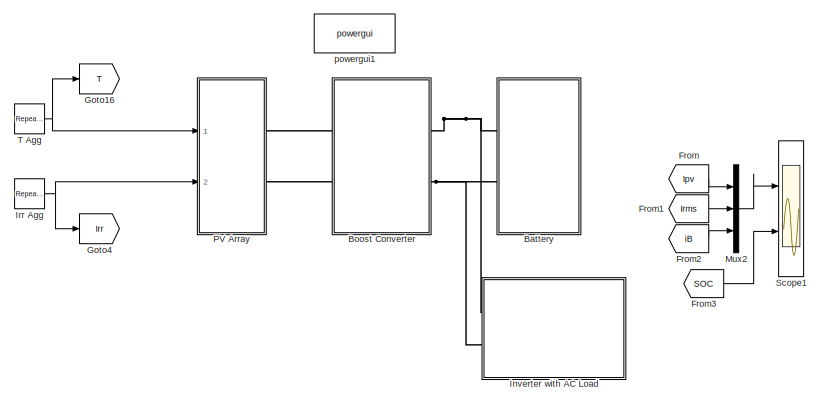
[diagram: root canvas - part 1/2, top center region]
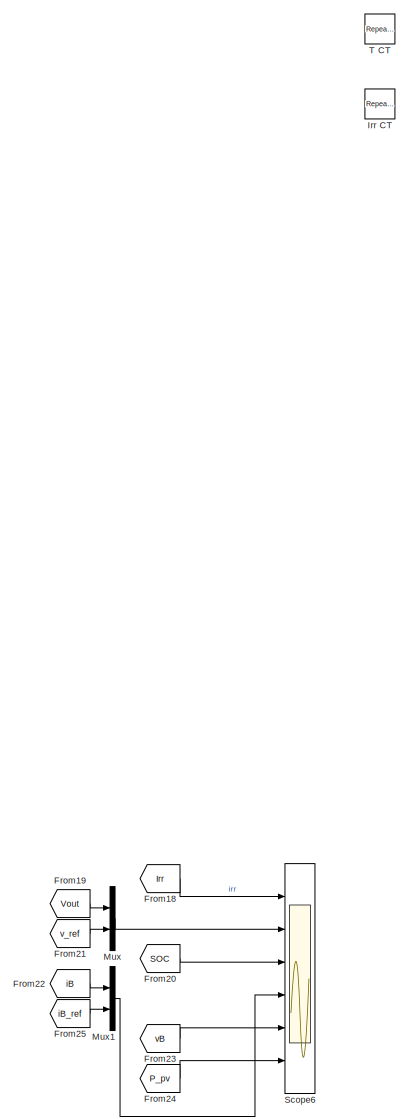
[diagram: root canvas - part 2/2, left side, full height]
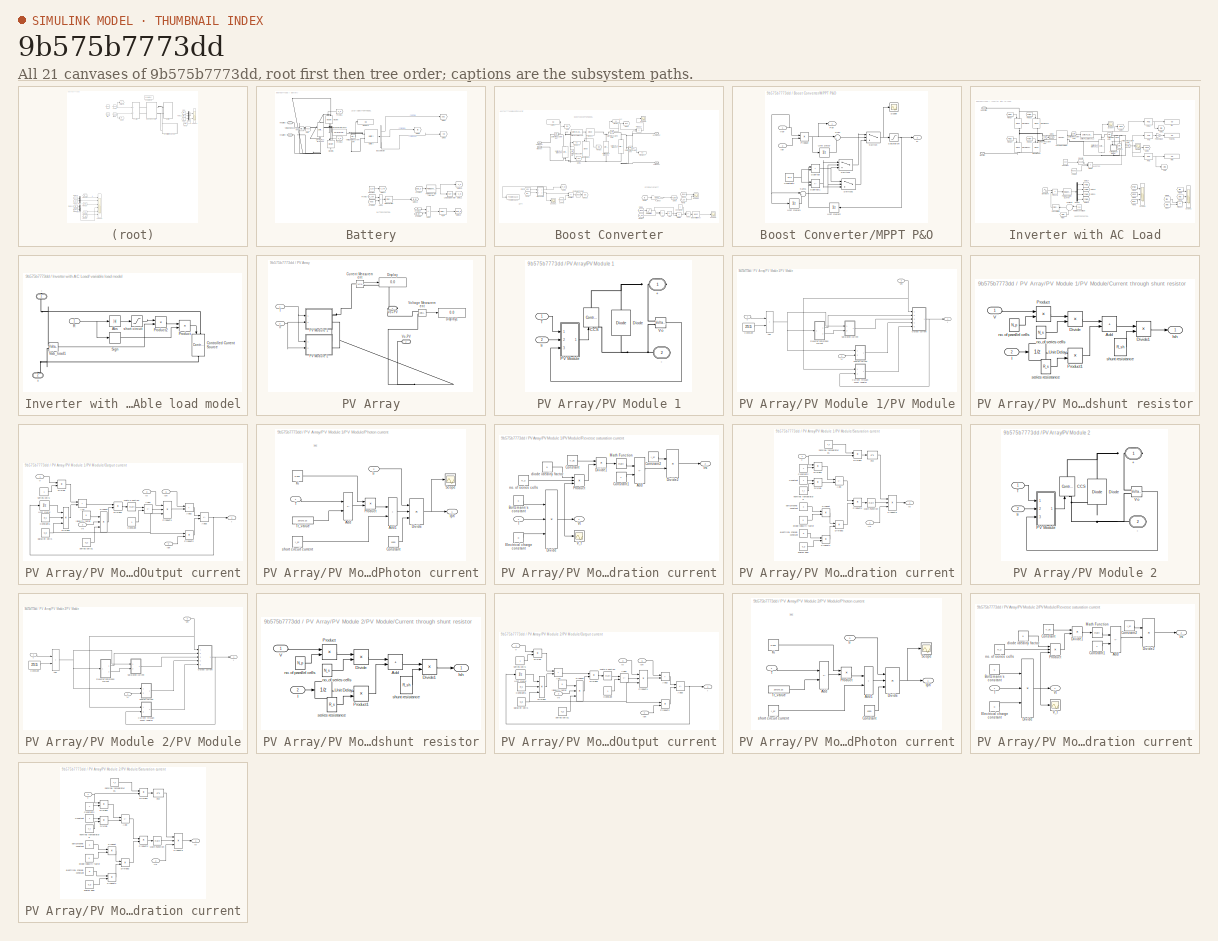
[diagram: thumbnail index - all 21 canvases of the model, root first then tree order]
MODEL slx_9b575b7773dd
KIND model
CONFIG AbsTol = auto
CONFIG EnableMultiTasking = off
CONFIG FixedStep = 1e-6
CONFIG MaxStep = 1e-5
CONFIG MinStep = 1e-6
CONFIG RelTol = 1e-3
CONFIG SampleTimeConstraint = Unconstrained
CONFIG Solver = VariableStepAuto
CONFIG SolverName = VariableStepAuto
CONFIG StartTime = 0.0
CONFIG StopTime = 24
BLOCK [SubSystem] Battery
  Ports = [0, 0, 0, 0, 0, 2]
  RequestExecContextInheritance = off
BLOCK [Sum] Battery/Add2
  IconShape = rectangular
  Inputs = +-
  Ports = [2, 1]
BLOCK [Sum] Battery/Add3
  IconShape = rectangular
  Inputs = +-
  Ports = [2, 1]
BLOCK [Reference] Battery/Battery  REF=electricdrivelib/Extra Sources/Battery
  NameLocation = top
  Ports = [0, 1, 0, 0, 0, 2]
  SourceBlock = electricdrivelib/Extra Sources/Battery
  SourceProductBaseCode = PS
  SourceType = Battery
BLOCK [BusSelector] Battery/Bus Selector
  OutputSignals = SOC (%),Current (A),Voltage (V)
  Ports = [1, 3]
BLOCK [Constant] Battery/Constant
  Value = 31.38
BLOCK [Display] Battery/Display6
  Decimation = 1
  Ports = [1]
BLOCK [From] Battery/From11
  GotoTag = s_P
  NameLocation = top
BLOCK [From] Battery/From12
  GotoTag = s_N
  NameLocation = top
BLOCK [From] Battery/From13
  GotoTag = duty_b
BLOCK [From] Battery/From14
  GotoTag = iB
  TagVisibility = global
BLOCK [From] Battery/From15
  GotoTag = iB_ref
  TagVisibility = global
BLOCK [From] Battery/From16
  GotoTag = Vout
  TagVisibility = global
BLOCK [From] Battery/From17
  GotoTag = v_ref
  TagVisibility = global
BLOCK [Goto] Battery/Goto
  GotoTag = Vout
  TagVisibility = global
BLOCK [Goto] Battery/Goto10
  GotoTag = s_P
BLOCK [Goto] Battery/Goto11
  GotoTag = s_N
BLOCK [Goto] Battery/Goto12
  GotoTag = duty_b
BLOCK [Goto] Battery/Goto13
  GotoTag = iB_ref
  TagVisibility = global
BLOCK [Goto] Battery/Goto14
  GotoTag = v_ref
  TagVisibility = global
BLOCK [Goto] Battery/Goto7
  GotoTag = SOC
  TagVisibility = global
BLOCK [Goto] Battery/Goto8
  GotoTag = iB
  TagVisibility = global
BLOCK [Goto] Battery/Goto9
  GotoTag = vB
  TagVisibility = global
BLOCK [Logic] Battery/Logical Operator
  AllPortsSameDT = off
  Inputs = 1
  Operator = NOT
  OutDataTypeStr = boolean
  Ports = [1, 1]
BLOCK [Reference] Battery/Mosfet  REF=powerlib/Power
Electronics/Mosfet
  NameLocation = left
  Ports = [1, 0, 0, 0, 0, 1, 1]
  SourceBlock = powerlib/Power\nElectronics/Mosfet
  SourceProductBaseCode = PS
  SourceType = Mosfet
BLOCK [Reference] Battery/Mosfet1  REF=powerlib/Power
Electronics/Mosfet
  NameLocation = left
  Ports = [1, 0, 0, 0, 0, 1, 1]
  SourceBlock = powerlib/Power\nElectronics/Mosfet
  SourceProductBaseCode = PS
  SourceType = Mosfet
BLOCK [Reference] Battery/PID Controller  REF=simulink/Continuous/PID Controller
  Ports = [1, 1]
  SourceBlock = simulink/Continuous/PID Controller
  SourceProductBaseCode = SL
  SourceType = PID 1dof
BLOCK [Reference] Battery/PI_B  REF=simulink/Continuous/PID Controller
  Ports = [1, 1]
  SourceBlock = simulink/Continuous/PID Controller
  SourceProductBaseCode = SL
  SourceType = PID 1dof
BLOCK [Reference] Battery/PWM Generator (DC-DC)  REF=powerlib_meascontrol/Pulse & Signal
Generators/PWM Generator
(DC-DC)
  Ports = [1, 1]
  SourceBlock = powerlib_meascontrol/Pulse & Signal\nGenerators/PWM Generator\n(DC-DC)
  SourceProductBaseCode = PS
  SourceType = PWM Generator (DC-DC)
BLOCK [Reference] Battery/Series RLC Branch  REF=powerlib/Elements/Series RLC Branch
  Ports = [0, 0, 0, 0, 0, 1, 1]
  SourceBlock = powerlib/Elements/Series RLC Branch
  SourceProductBaseCode = PS
  SourceType = Series RLC Branch
BLOCK [Reference] Battery/Series RLC Branch1  REF=powerlib/Elements/Series RLC Branch
  NameLocation = left
  Ports = [0, 0, 0, 0, 0, 1, 1]
  SourceBlock = powerlib/Elements/Series RLC Branch
  SourceProductBaseCode = PS
  SourceType = Series RLC Branch
BLOCK [PMIOPort] Battery/Vi+Battery
  Side = Left
BLOCK [PMIOPort] Battery/Vi-Battery
  Port = 2
  Side = Left
BLOCK [Reference] Battery/Voltage Measurement  REF=powerlib/Measurements/Voltage Measurement
  Ports = [0, 1, 0, 0, 0, 2]
  SourceBlock = powerlib/Measurements/Voltage Measurement
  SourceProductBaseCode = PS
  SourceType = Voltage Measurement
  UserDataPersistent = on
BLOCK [Reference] Battery/Voltage Measurement4  REF=powerlib/Measurements/Voltage Measurement
  Ports = [0, 1, 0, 0, 0, 2]
  SourceBlock = powerlib/Measurements/Voltage Measurement
  SourceProductBaseCode = PS
  SourceType = Voltage Measurement
  UserDataPersistent = on
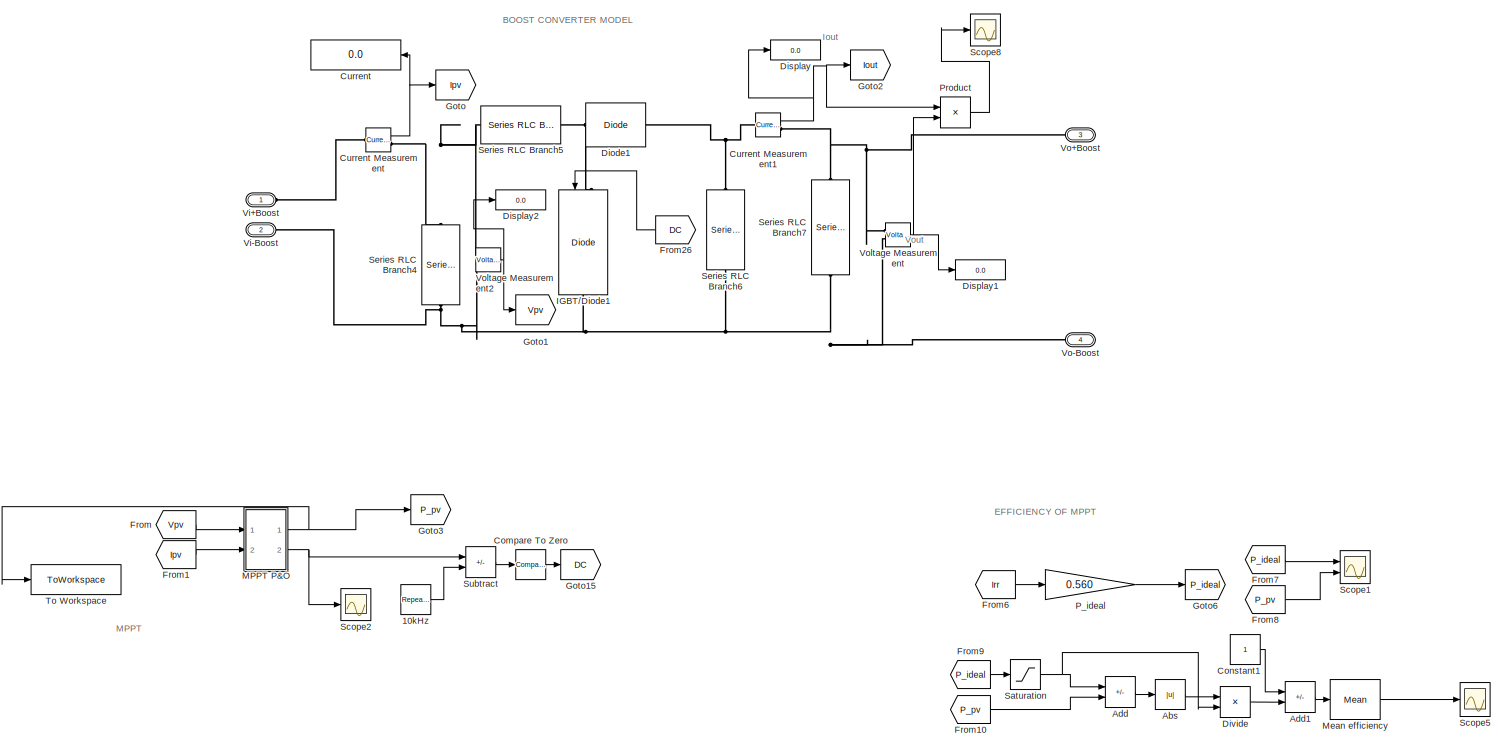
[diagram: Boost Converter - part 1/1, most of the canvas]
BLOCK [SubSystem] Boost Converter
  Ports = [0, 0, 0, 0, 0, 2, 2]
  RequestExecContextInheritance = off
BLOCK [Reference] Boost Converter/10kHz  REF=simulink/Sources/Repeating
Sequence
  Ports = [0, 1]
  SourceBlock = simulink/Sources/Repeating\nSequence
  SourceProductBaseCode = SL
  SourceType = Repeating table
BLOCK [Abs] Boost Converter/Abs
  SaturateOnIntegerOverflow = off
BLOCK [Sum] Boost Converter/Add
  IconShape = rectangular
  Inputs = +-
  Ports = [2, 1]
BLOCK [Sum] Boost Converter/Add1
  IconShape = rectangular
  Inputs = +-
  Ports = [2, 1]
BLOCK [Reference] Boost Converter/Compare To Zero  REF=simulink/Logic and Bit
Operations/Compare
To Zero
  Ports = [1, 1]
  SourceBlock = simulink/Logic and Bit\nOperations/Compare\nTo Zero
  SourceProductBaseCode = SL
  SourceType = Compare To Zero
BLOCK [Constant] Boost Converter/Constant1
BLOCK [Display] Boost Converter/Current
  Decimation = 1
  NameLocation = top
  Ports = [1]
BLOCK [Reference] Boost Converter/Current Measurement  REF=powerlib/Measurements/Current Measurement
  Ports = [0, 1, 0, 0, 0, 1, 1]
  SourceBlock = powerlib/Measurements/Current Measurement
  SourceProductBaseCode = PS
  SourceType = Current Measurement
  UserDataPersistent = on
BLOCK [Reference] Boost Converter/Current Measurement1  REF=powerlib/Measurements/Current Measurement
  Ports = [0, 1, 0, 0, 0, 1, 1]
  SourceBlock = powerlib/Measurements/Current Measurement
  SourceProductBaseCode = PS
  SourceType = Current Measurement
  UserDataPersistent = on
BLOCK [Reference] Boost Converter/Diode1  REF=powerlib/Power
Electronics/Diode
  Ports = [0, 0, 0, 0, 0, 1, 1]
  SourceBlock = powerlib/Power\nElectronics/Diode
  SourceProductBaseCode = PS
  SourceType = Diode
BLOCK [Display] Boost Converter/Display
  Decimation = 1
  Ports = [1]
BLOCK [Display] Boost Converter/Display1
  Decimation = 1
  Ports = [1]
BLOCK [Display] Boost Converter/Display2
  Decimation = 1
  Ports = [1]
BLOCK [Product] Boost Converter/Divide
  Inputs = */
  Ports = [2, 1]
BLOCK [From] Boost Converter/From
  GotoTag = Vpv
  TagVisibility = global
BLOCK [From] Boost Converter/From1
  GotoTag = Ipv
  TagVisibility = global
BLOCK [From] Boost Converter/From10
  GotoTag = P_pv
  TagVisibility = global
BLOCK [From] Boost Converter/From26
  GotoTag = DC
  NameLocation = top
BLOCK [From] Boost Converter/From6
  GotoTag = Irr
  TagVisibility = global
BLOCK [From] Boost Converter/From7
  GotoTag = P_ideal
BLOCK [From] Boost Converter/From8
  GotoTag = P_pv
  TagVisibility = global
BLOCK [From] Boost Converter/From9
  GotoTag = P_ideal
BLOCK [Goto] Boost Converter/Goto
  GotoTag = Ipv
  TagVisibility = global
BLOCK [Goto] Boost Converter/Goto1
  GotoTag = Vpv
  TagVisibility = global
BLOCK [Goto] Boost Converter/Goto15
  GotoTag = DC
BLOCK [Goto] Boost Converter/Goto2
  GotoTag = Iout
BLOCK [Goto] Boost Converter/Goto3
  GotoTag = P_pv
  TagVisibility = global
BLOCK [Goto] Boost Converter/Goto6
  GotoTag = P_ideal
BLOCK [Reference] Boost Converter/IGBT//Diode1  REF=powerlib/Power
Electronics/IGBT//Diode
  NameLocation = left
  Ports = [1, 0, 0, 0, 0, 1, 1]
  SourceBlock = powerlib/Power\nElectronics/IGBT//Diode
  SourceProductBaseCode = PS
  SourceType = IGBT/Diode
BLOCK [SubSystem] Boost Converter/MPPT P&O
  Ports = [2, 2]
  RequestExecContextInheritance = off
BLOCK [Constant] Boost Converter/MPPT P&O/Constant1
  Value = 1e-5
BLOCK [Outport] Boost Converter/MPPT P&O/D
  Port = 2
BLOCK [Inport] Boost Converter/MPPT P&O/Ipv
  Port = 2
BLOCK [Outport] Boost Converter/MPPT P&O/Ppv
BLOCK [Product] Boost Converter/MPPT P&O/Product
  Ports = [2, 1]
BLOCK [Saturate] Boost Converter/MPPT P&O/Saturation
  LowerLimit = 0
  UpperLimit = 1
BLOCK [Scope] Boost Converter/MPPT P&O/Scope
  Floating = off
  NumInputPorts = 1
  Ports = [1]
  ScopeSpecificationString = Simulink.scopes.TimeScopeBlockCfg('CurrentConfiguration', extmgr.ConfigurationSet(extmgr.Configuration('Core','General UI',true),extmgr.Configuration('Core','Source UI',true),extmgr.Configuration('Sources','WiredSimulink',true,'DataLoggingVariableName','ScopeData5'),extmgr.Configuration('Visuals','Time Domain',true,'SerializedDisplays',{struct('MinYLimReal','-0.10057','MaxYLimReal','0.90501','YLab...<+1365ch>
BLOCK [Sum] Boost Converter/MPPT P&O/Subtract
  IconShape = rectangular
  Ports = [2, 1]
BLOCK [Sum] Boost Converter/MPPT P&O/Subtract1
  IconShape = rectangular
  Inputs = -+
  Ports = [2, 1]
BLOCK [Sum] Boost Converter/MPPT P&O/Sum
  Inputs = |+-
  Ports = [2, 1]
BLOCK [Sum] Boost Converter/MPPT P&O/Sum1
  Inputs = |+-
  Ports = [2, 1]
BLOCK [Switch] Boost Converter/MPPT P&O/Switch
  Criteria = u2 > Threshold
  InputSameDT = off
  SaturateOnIntegerOverflow = off
BLOCK [Switch] Boost Converter/MPPT P&O/Switch1
  Criteria = u2 > Threshold
  InputSameDT = off
  SaturateOnIntegerOverflow = off
BLOCK [Switch] Boost Converter/MPPT P&O/Switch2
  Criteria = u2 > Threshold
  InputSameDT = off
  SaturateOnIntegerOverflow = off
BLOCK [UnitDelay] Boost Converter/MPPT P&O/Unit Delay
  HasFrameUpgradeWarning = on
  SampleTime = -1
BLOCK [UnitDelay] Boost Converter/MPPT P&O/Unit Delay1
  HasFrameUpgradeWarning = on
  SampleTime = -1
BLOCK [UnitDelay] Boost Converter/MPPT P&O/Unit Delay2
  HasFrameUpgradeWarning = on
  NameLocation = top
  SampleTime = -1
BLOCK [Inport] Boost Converter/MPPT P&O/Vpv
BLOCK [Reference] Boost Converter/Mean efficiency  REF=powerlib_meascontrol/Measurements/Mean
  Ports = [1, 1]
  SourceBlock = powerlib_meascontrol/Measurements/Mean
  SourceProductBaseCode = PS
  SourceType = Mean
BLOCK [Gain] Boost Converter/P_ideal
  Gain = 0.560
BLOCK [Product] Boost Converter/Product
  Ports = [2, 1]
BLOCK [Saturate] Boost Converter/Saturation
  LowerLimit = 0
  UpperLimit = 1000
BLOCK [Scope] Boost Converter/Scope1
  Floating = off
  NumInputPorts = 2
  Ports = [2]
  ScopeSpecificationString = Simulink.scopes.TimeScopeBlockCfg('CurrentConfiguration', extmgr.ConfigurationSet(extmgr.Configuration('Core','General UI',true,'FigureColor',[1 1 1]),extmgr.Configuration('Core','Source UI',true),extmgr.Configuration('Sources','WiredSimulink',true,'DataLoggingVariableName','ScopeData3'),extmgr.Configuration('Visuals','Time Domain',true,'TimeAxisLabels','All','SerializedDisplays',{struct('MinYLimR...<+2791ch>
BLOCK [Scope] Boost Converter/Scope2
  Floating = off
  NumInputPorts = 1
  Ports = [1]
  ScopeSpecificationString = Simulink.scopes.TimeScopeBlockCfg('CurrentConfiguration', extmgr.ConfigurationSet(extmgr.Configuration('Core','General UI',true),extmgr.Configuration('Core','Source UI',true),extmgr.Configuration('Sources','WiredSimulink',true,'DataLoggingVariableName','ScopeData2'),extmgr.Configuration('Visuals','Time Domain',true,'SerializedDisplays',{struct('MinYLimReal','-1.00000','MaxYLimReal','1.00000','YLab...<+1388ch>
BLOCK [Scope] Boost Converter/Scope5
  Floating = off
  NumInputPorts = 1
  Ports = [1]
  ScopeSpecificationString = Simulink.scopes.TimeScopeBlockCfg('CurrentConfiguration', extmgr.ConfigurationSet(extmgr.Configuration('Core','General UI',true,'FigureColor',[1 1 1]),extmgr.Configuration('Core','Source UI',true),extmgr.Configuration('Sources','WiredSimulink',true,'DataLoggingVariableName','ScopeData4'),extmgr.Configuration('Visuals','Time Domain',true,'TimeAxisLabels','All','SerializedDisplays',{struct('MinYLimR...<+2798ch>
BLOCK [Scope] Boost Converter/Scope8
  Floating = off
  NumInputPorts = 1
  Ports = [1]
  ScopeSpecificationString = Simulink.scopes.TimeScopeBlockCfg('CurrentConfiguration', extmgr.ConfigurationSet(extmgr.Configuration('Core','General UI',true),extmgr.Configuration('Core','Source UI',true),extmgr.Configuration('Sources','WiredSimulink',true,'DataLoggingVariableName','ScopeData1'),extmgr.Configuration('Visuals','Time Domain',true,'SerializedDisplays',{struct('MinYLimReal','-48.77218','MaxYLimReal','980.28024','Y...<+1430ch>
BLOCK [Reference] Boost Converter/Series RLC Branch4  REF=powerlib/Elements/Series RLC Branch
  NameLocation = left
  Ports = [0, 0, 0, 0, 0, 1, 1]
  SourceBlock = powerlib/Elements/Series RLC Branch
  SourceProductBaseCode = PS
  SourceType = Series RLC Branch
BLOCK [Reference] Boost Converter/Series RLC Branch5  REF=powerlib/Elements/Series RLC Branch
  NameLocation = top
  Ports = [0, 0, 0, 0, 0, 1, 1]
  SourceBlock = powerlib/Elements/Series RLC Branch
  SourceProductBaseCode = PS
  SourceType = Series RLC Branch
BLOCK [Reference] Boost Converter/Series RLC Branch6  REF=powerlib/Elements/Series RLC Branch
  NameLocation = left
  Ports = [0, 0, 0, 0, 0, 1, 1]
  SourceBlock = powerlib/Elements/Series RLC Branch
  SourceProductBaseCode = PS
  SourceType = Series RLC Branch
BLOCK [Reference] Boost Converter/Series RLC Branch7  REF=powerlib/Elements/Series RLC Branch
  Commented = on
  NameLocation = right
  Ports = [0, 0, 0, 0, 0, 1, 1]
  SourceBlock = powerlib/Elements/Series RLC Branch
  SourceProductBaseCode = PS
  SourceType = Series RLC Branch
BLOCK [Sum] Boost Converter/Subtract
  IconShape = rectangular
  Inputs = +-
  Ports = [2, 1]
BLOCK [ToWorkspace] Boost Converter/To Workspace
  FixptAsFi = on
  MaxDataPoints = inf
  Ports = [1]
  SampleTime = -1
  SaveFormat = Timeseries
  VariableName = ppv2
BLOCK [PMIOPort] Boost Converter/Vi+Boost
  Side = Left
BLOCK [PMIOPort] Boost Converter/Vi-Boost
  Port = 2
  Side = Left
BLOCK [PMIOPort] Boost Converter/Vo+Boost
  Port = 3
  Side = Right
BLOCK [PMIOPort] Boost Converter/Vo-Boost
  Port = 4
  Side = Right
BLOCK [Reference] Boost Converter/Voltage Measurement  REF=powerlib/Measurements/Voltage Measurement
  Ports = [0, 1, 0, 0, 0, 2]
  SourceBlock = powerlib/Measurements/Voltage Measurement
  SourceProductBaseCode = PS
  SourceType = Voltage Measurement
  UserDataPersistent = on
BLOCK [Reference] Boost Converter/Voltage Measurement2  REF=powerlib/Measurements/Voltage Measurement
  Ports = [0, 1, 0, 0, 0, 2]
  SourceBlock = powerlib/Measurements/Voltage Measurement
  SourceProductBaseCode = PS
  SourceType = Voltage Measurement
  UserDataPersistent = on
BLOCK [From] From
  GotoTag = Ipv
  TagVisibility = global
BLOCK [From] From1
  GotoTag = Irms
  TagVisibility = global
BLOCK [From] From18
  GotoTag = Irr
  TagVisibility = global
BLOCK [From] From19
  GotoTag = Vout
  TagVisibility = global
BLOCK [From] From2
  GotoTag = iB
  TagVisibility = global
BLOCK [From] From20
  GotoTag = SOC
  TagVisibility = global
BLOCK [From] From21
  GotoTag = v_ref
  TagVisibility = global
BLOCK [From] From22
  GotoTag = iB
  TagVisibility = global
BLOCK [From] From23
  GotoTag = vB
  TagVisibility = global
BLOCK [From] From24
  GotoTag = P_pv
  TagVisibility = global
BLOCK [From] From25
  GotoTag = iB_ref
  TagVisibility = global
BLOCK [From] From3
  GotoTag = SOC
  TagVisibility = global
BLOCK [Goto] Goto16
  GotoTag = T
BLOCK [Goto] Goto4
  GotoTag = Irr
  TagVisibility = global
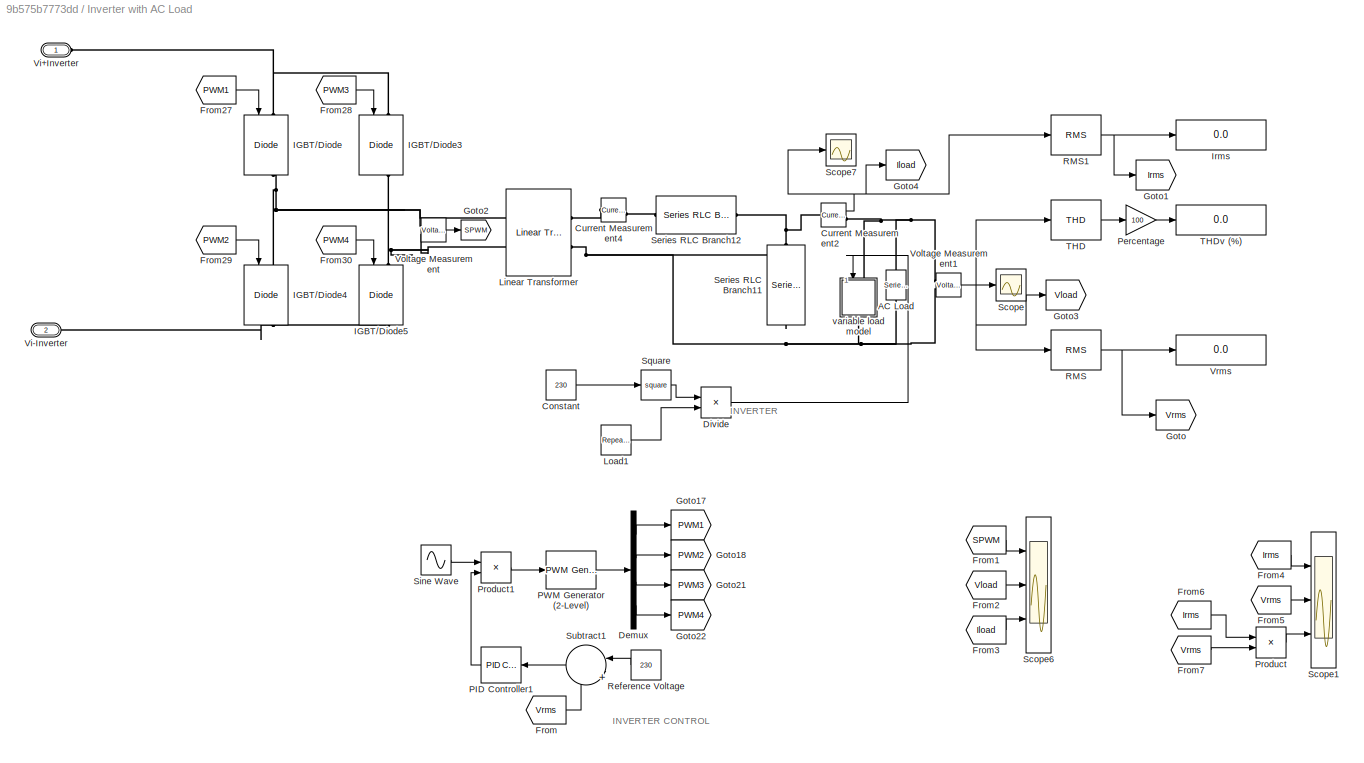
BLOCK [SubSystem] Inverter with AC Load
  Ports = [0, 0, 0, 0, 0, 2]
  RequestExecContextInheritance = off
BLOCK [SubSystem] Inverter with AC Load/ variable load model
  NameLocation = left
  Ports = [1, 0, 0, 0, 0, 1, 1]
  RequestExecContextInheritance = off
BLOCK [PMIOPort] Inverter with AC Load/ variable load model/+
  NameLocation = right
  Port = 2
  Side = Left
BLOCK [PMIOPort] Inverter with AC Load/ variable load model/-
  NameLocation = right
  Side = Right
BLOCK [Abs] Inverter with AC Load/ variable load model/Abs
  SampleTime = 1e-03
  SaturateOnIntegerOverflow = off
BLOCK [Reference] Inverter with AC Load/ variable load model/Controlled Current Source  REF=powerlib/Electrical
Sources/Controlled Current Source
  NameLocation = left
  Ports = [1, 0, 0, 0, 0, 1, 1]
  SourceBlock = powerlib/Electrical\nSources/Controlled Current Source
  SourceProductBaseCode = PS
  SourceType = Controlled Current Source
BLOCK [Product] Inverter with AC Load/ variable load model/Product
  Ports = [2, 1]
BLOCK [Product] Inverter with AC Load/ variable load model/Product2
  Inputs = /*
  Ports = [2, 1]
  RndMeth = Zero
BLOCK [Inport] Inverter with AC Load/ variable load model/R
BLOCK [Signum] Inverter with AC Load/ variable load model/Sign
BLOCK [Reference] Inverter with AC Load/ variable load model/Vab_load1  REF=powerlib/Measurements/Voltage Measurement
  AttributesFormatString = \n
  Ports = [0, 1, 0, 0, 0, 2]
  SourceBlock = powerlib/Measurements/Voltage Measurement
  SourceProductBaseCode = PS
  SourceType = Voltage Measurement
  Tag = PoWeRsYsTeMmEaSuReMeNt
BLOCK [Saturate] Inverter with AC Load/ variable load model/short circuit
  LowerLimit = 0.0001
  UpperLimit = 1000
BLOCK [Reference] Inverter with AC Load/AC Load  REF=powerlib/Elements/Series RLC Load
  AttributesFormatString = \n
  Commented = on
  NameLocation = left
  Ports = [0, 0, 0, 0, 0, 1, 1]
  SourceBlock = powerlib/Elements/Series RLC Load
  SourceProductBaseCode = PS
  SourceType = Series RLC Load
BLOCK [Constant] Inverter with AC Load/Constant
  Value = 230
BLOCK [Reference] Inverter with AC Load/Current Measurement2  REF=powerlib/Measurements/Current Measurement
  Ports = [0, 1, 0, 0, 0, 1, 1]
  SourceBlock = powerlib/Measurements/Current Measurement
  SourceProductBaseCode = PS
  SourceType = Current Measurement
  UserDataPersistent = on
BLOCK [Reference] Inverter with AC Load/Current Measurement4  REF=powerlib/Measurements/Current Measurement
  Ports = [0, 1, 0, 0, 0, 1, 1]
  SourceBlock = powerlib/Measurements/Current Measurement
  SourceProductBaseCode = PS
  SourceType = Current Measurement
  UserDataPersistent = on
BLOCK [Demux] Inverter with AC Load/Demux
  Ports = [1, 4]
BLOCK [Product] Inverter with AC Load/Divide
  Inputs = */
  Ports = [2, 1]
BLOCK [From] Inverter with AC Load/From
  GotoTag = Vrms
  TagVisibility = global
BLOCK [From] Inverter with AC Load/From1
  Commented = on
  GotoTag = SPWM
BLOCK [From] Inverter with AC Load/From2
  Commented = on
  GotoTag = Vload
BLOCK [From] Inverter with AC Load/From27
  GotoTag = PWM1
BLOCK [From] Inverter with AC Load/From28
  GotoTag = PWM3
BLOCK [From] Inverter with AC Load/From29
  GotoTag = PWM2
BLOCK [From] Inverter with AC Load/From3
  Commented = on
  GotoTag = Iload
BLOCK [From] Inverter with AC Load/From30
  GotoTag = PWM4
BLOCK [From] Inverter with AC Load/From4
  Commented = on
  GotoTag = Irms
  TagVisibility = global
BLOCK [From] Inverter with AC Load/From5
  Commented = on
  GotoTag = Vrms
  TagVisibility = global
BLOCK [From] Inverter with AC Load/From6
  Commented = on
  GotoTag = Irms
  TagVisibility = global
BLOCK [From] Inverter with AC Load/From7
  Commented = on
  GotoTag = Vrms
  TagVisibility = global
BLOCK [Goto] Inverter with AC Load/Goto
  GotoTag = Vrms
  TagVisibility = global
BLOCK [Goto] Inverter with AC Load/Goto1
  GotoTag = Irms
  TagVisibility = global
BLOCK [Goto] Inverter with AC Load/Goto17
  GotoTag = PWM1
BLOCK [Goto] Inverter with AC Load/Goto18
  GotoTag = PWM2
BLOCK [Goto] Inverter with AC Load/Goto2
  GotoTag = SPWM
BLOCK [Goto] Inverter with AC Load/Goto21
  GotoTag = PWM3
BLOCK [Goto] Inverter with AC Load/Goto22
  GotoTag = PWM4
BLOCK [Goto] Inverter with AC Load/Goto3
  GotoTag = Vload
BLOCK [Goto] Inverter with AC Load/Goto4
  GotoTag = Iload
  TagVisibility = global
BLOCK [Reference] Inverter with AC Load/IGBT//Diode  REF=powerlib/Power
Electronics/IGBT//Diode
  NameLocation = left
  Ports = [1, 1, 0, 0, 0, 1, 1]
  SourceBlock = powerlib/Power\nElectronics/IGBT//Diode
  SourceProductBaseCode = PS
  SourceType = IGBT/Diode
BLOCK [Reference] Inverter with AC Load/IGBT//Diode3  REF=powerlib/Power
Electronics/IGBT//Diode
  NameLocation = left
  Ports = [1, 1, 0, 0, 0, 1, 1]
  SourceBlock = powerlib/Power\nElectronics/IGBT//Diode
  SourceProductBaseCode = PS
  SourceType = IGBT/Diode
BLOCK [Reference] Inverter with AC Load/IGBT//Diode4  REF=powerlib/Power
Electronics/IGBT//Diode
  NameLocation = left
  Ports = [1, 1, 0, 0, 0, 1, 1]
  SourceBlock = powerlib/Power\nElectronics/IGBT//Diode
  SourceProductBaseCode = PS
  SourceType = IGBT/Diode
BLOCK [Reference] Inverter with AC Load/IGBT//Diode5  REF=powerlib/Power
Electronics/IGBT//Diode
  NameLocation = left
  Ports = [1, 1, 0, 0, 0, 1, 1]
  SourceBlock = powerlib/Power\nElectronics/IGBT//Diode
  SourceProductBaseCode = PS
  SourceType = IGBT/Diode
BLOCK [Display] Inverter with AC Load/Irms
  Decimation = 1
  Ports = [1]
BLOCK [Reference] Inverter with AC Load/Linear Transformer  REF=powerlib/Elements/Linear Transformer
  Ports = [0, 0, 0, 0, 0, 2, 2]
  SourceBlock = powerlib/Elements/Linear Transformer
  SourceProductBaseCode = PS
  SourceType = Linear Transformer
BLOCK [Reference] Inverter with AC Load/Load1  REF=simulink/Sources/Repeating
Sequence
Interpolated
  Ports = [0, 1]
  SourceBlock = simulink/Sources/Repeating\nSequence\nInterpolated
  SourceProductBaseCode = SL
  SourceType = Repeating Sequence Interpolated
BLOCK [Reference] Inverter with AC Load/PID Controller1  REF=simulink/Continuous/PID Controller
  Ports = [1, 1]
  SourceBlock = simulink/Continuous/PID Controller
  SourceProductBaseCode = SL
  SourceType = PID 1dof
BLOCK [Reference] Inverter with AC Load/PWM Generator (2-Level)  REF=powerlib_meascontrol/Pulse & Signal
Generators/PWM Generator
(2-Level)
  Ports = [1, 1]
  SourceBlock = powerlib_meascontrol/Pulse & Signal\nGenerators/PWM Generator\n(2-Level)
  SourceProductBaseCode = PS
  SourceType = PWM Generator (2-Level)
BLOCK [Gain] Inverter with AC Load/Percentage
  Gain = 100
BLOCK [Product] Inverter with AC Load/Product
  Commented = on
  Ports = [2, 1]
BLOCK [Product] Inverter with AC Load/Product1
  Ports = [2, 1]
BLOCK [Reference] Inverter with AC Load/RMS  REF=powerlib_meascontrol/Measurements/RMS
  Ports = [1, 1]
  SourceBlock = powerlib_meascontrol/Measurements/RMS
  SourceProductBaseCode = PS
  SourceType = RMS
BLOCK [Reference] Inverter with AC Load/RMS1  REF=powerlib_meascontrol/Measurements/RMS
  Ports = [1, 1]
  SourceBlock = powerlib_meascontrol/Measurements/RMS
  SourceProductBaseCode = PS
  SourceType = RMS
BLOCK [Constant] Inverter with AC Load/Reference Voltage
  Value = 230
BLOCK [Scope] Inverter with AC Load/Scope
  Floating = off
  NumInputPorts = 1
  Ports = [1]
  ScopeSpecificationString = Simulink.scopes.TimeScopeBlockCfg('CurrentConfiguration', extmgr.ConfigurationSet(extmgr.Configuration('Core','General UI',true),extmgr.Configuration('Core','Source UI',true),extmgr.Configuration('Sources','WiredSimulink',true,'DataLoggingVariableName','ScopeData2'),extmgr.Configuration('Visuals','Time Domain',true,'SerializedDisplays',{struct('MinYLimReal','238.18388','MaxYLimReal','332.71139','Y...<+1412ch>
BLOCK [Scope] Inverter with AC Load/Scope1
  Commented = on
  Floating = off
  NumInputPorts = 3
  Ports = [3]
  ScopeSpecificationString = Simulink.scopes.TimeScopeBlockCfg('CurrentConfiguration', extmgr.ConfigurationSet(extmgr.Configuration('Core','General UI',true,'FigureColor',[1 1 1]),extmgr.Configuration('Core','Source UI',true),extmgr.Configuration('Sources','WiredSimulink',true,'DataLoggingVariableName','ScopeData6'),extmgr.Configuration('Visuals','Time Domain',true,'SerializedDisplays',{struct('MinYLimReal','1','MaxYLimReal',...<+3303ch>
BLOCK [Scope] Inverter with AC Load/Scope6
  Commented = on
  Floating = off
  NumInputPorts = 3
  Ports = [3]
  ScopeSpecificationString = Simulink.scopes.TimeScopeBlockCfg('CurrentConfiguration', extmgr.ConfigurationSet(extmgr.Configuration('Core','General UI',true,'FigureColor',[1 1 1]),extmgr.Configuration('Core','Source UI',true),extmgr.Configuration('Sources','WiredSimulink',true,'DataLoggingVariableName','ScopeData5'),extmgr.Configuration('Visuals','Time Domain',true,'SerializedDisplays',{struct('MinYLimReal','-54.34219','MaxYL...<+3316ch>
BLOCK [Scope] Inverter with AC Load/Scope7
  Floating = off
  NumInputPorts = 1
  Ports = [1]
  ScopeSpecificationString = Simulink.scopes.TimeScopeBlockCfg('CurrentConfiguration', extmgr.ConfigurationSet(extmgr.Configuration('Core','General UI',true),extmgr.Configuration('Core','Source UI',true),extmgr.Configuration('Sources','WiredSimulink',true,'DataLoggingVariableName','ScopeData1'),extmgr.Configuration('Visuals','Time Domain',true,'SerializedDisplays',{struct('MinYLimReal','-3.17805','MaxYLimReal','2.90443','YLab...<+1398ch>
BLOCK [Reference] Inverter with AC Load/Series RLC Branch11  REF=powerlib/Elements/Series RLC Branch
  NameLocation = left
  Ports = [0, 0, 0, 0, 0, 1, 1]
  SourceBlock = powerlib/Elements/Series RLC Branch
  SourceProductBaseCode = PS
  SourceType = Series RLC Branch
BLOCK [Reference] Inverter with AC Load/Series RLC Branch12  REF=powerlib/Elements/Series RLC Branch
  Ports = [0, 0, 0, 0, 0, 1, 1]
  SourceBlock = powerlib/Elements/Series RLC Branch
  SourceProductBaseCode = PS
  SourceType = Series RLC Branch
BLOCK [Sin] Inverter with AC Load/Sine Wave
  Frequency = 314
  Ports = [0, 1]
  SampleTime = 0
BLOCK [Math] Inverter with AC Load/Square
  Operator = square
  Ports = [1, 1]
BLOCK [Sum] Inverter with AC Load/Subtract1
  Inputs = |||+||-
  Ports = [2, 1]
BLOCK [Reference] Inverter with AC Load/THD  REF=powerlib_meascontrol/Measurements/THD
  Ports = [1, 1]
  SourceBlock = powerlib_meascontrol/Measurements/THD
  SourceProductBaseCode = PS
  SourceType = THD
BLOCK [Display] Inverter with AC Load/THDv (%)
  Decimation = 1
  Ports = [1]
BLOCK [PMIOPort] Inverter with AC Load/Vi+Inverter
  Side = Left
BLOCK [PMIOPort] Inverter with AC Load/Vi-Inverter
  Port = 2
  Side = Left
BLOCK [Reference] Inverter with AC Load/Voltage Measurement  REF=powerlib/Measurements/Voltage Measurement
  Ports = [0, 1, 0, 0, 0, 2]
  SourceBlock = powerlib/Measurements/Voltage Measurement
  SourceProductBaseCode = PS
  SourceType = Voltage Measurement
  UserDataPersistent = on
BLOCK [Reference] Inverter with AC Load/Voltage Measurement1  REF=powerlib/Measurements/Voltage Measurement
  Ports = [0, 1, 0, 0, 0, 2]
  SourceBlock = powerlib/Measurements/Voltage Measurement
  SourceProductBaseCode = PS
  SourceType = Voltage Measurement
  UserDataPersistent = on
BLOCK [Display] Inverter with AC Load/Vrms
  Decimation = 1
  Ports = [1]
BLOCK [Reference] Irr Agg  REF=simulink/Sources/Repeating
Sequence
Interpolated
  Ports = [0, 1]
  SourceBlock = simulink/Sources/Repeating\nSequence\nInterpolated
  SourceProductBaseCode = SL
  SourceType = Repeating Sequence Interpolated
BLOCK [Reference] Irr CT  REF=simulink/Sources/Repeating
Sequence
Interpolated
  Ports = [0, 1]
  SourceBlock = simulink/Sources/Repeating\nSequence\nInterpolated
  SourceProductBaseCode = SL
  SourceType = Repeating Sequence Interpolated
BLOCK [Mux] Mux
  DisplayOption = bar
  Inputs = 2
  Ports = [2, 1]
BLOCK [Mux] Mux1
  DisplayOption = bar
  Inputs = 2
  Ports = [2, 1]
BLOCK [Mux] Mux2
  DisplayOption = bar
  Inputs = 3
  Ports = [3, 1]
BLOCK [SubSystem] PV Array
  Ports = [2, 0, 0, 0, 0, 0, 2]
  RequestExecContextInheritance = off
BLOCK [Reference] PV Array/Current Measurement  REF=powerlib/Measurements/Current Measurement
  Ports = [0, 1, 0, 0, 0, 1, 1]
  SourceBlock = powerlib/Measurements/Current Measurement
  SourceProductBaseCode = PS
  SourceType = Current Measurement
  UserDataPersistent = on
BLOCK [Display] PV Array/Display
  Decimation = 1
  Ports = [1]
BLOCK [Display] PV Array/Display1
  Decimation = 1
  Ports = [1]
BLOCK [Inport] PV Array/Ir
  Port = 2
BLOCK [SubSystem] PV Array/PV Module 1
  Ports = [2, 0, 0, 0, 0, 0, 2]
  RequestExecContextInheritance = off
BLOCK [PMIOPort] PV Array/PV Module 1/+
  NameLocation = top
  Side = Right
  Tag = PMCPort
BLOCK [PMIOPort] PV Array/PV Module 1/-
  NameLocation = top
  Port = 2
  Side = Right
  Tag = PMCPort
BLOCK [Reference] PV Array/PV Module 1/CCS  REF=powerlib/Electrical
Sources/Controlled Current Source
  NameLocation = right
  Ports = [1, 0, 0, 0, 0, 1, 1]
  SourceBlock = powerlib/Electrical\nSources/Controlled Current Source
  SourceProductBaseCode = PS
  SourceType = Controlled Current Source
BLOCK [Reference] PV Array/PV Module 1/Diode  REF=powerlib/Power
Electronics/Diode
  NameLocation = right
  Ports = [0, 0, 0, 0, 0, 1, 1]
  SourceBlock = powerlib/Power\nElectronics/Diode
  SourceProductBaseCode = PS
  SourceType = Diode
BLOCK [Inport] PV Array/PV Module 1/Ir
  Port = 2
BLOCK [SubSystem] PV Array/PV Module 1/PV Module
  InitFcn = I_sc=9.45;\nV_oc=39.12;\nV_mp=31.38;\nI_mp=8.93;\nN_s=60;\nN_p=1;\nT_r=298.15;\nq = 1.6e-19;\nk = 1.3815e-23;\nR_sh= 1000;\nR_s = 0.001;\ndV_dI_oc = -0.487;\na =1.725;\ne_g = 1.1;
  Ports = [3, 1]
  RequestExecContextInheritance = off
BLOCK [Sum] PV Array/PV Module 1/PV Module/Add
  IconShape = rectangular
  Ports = [2, 1]
BLOCK [Constant] PV Array/PV Module 1/PV Module/Constant
  Value = 273.15
BLOCK [SubSystem] PV Array/PV Module 1/PV Module/Current through shunt resistor
  Ports = [2, 1]
  RequestExecContextInheritance = off
BLOCK [Sum] PV Array/PV Module 1/PV Module/Current through shunt resistor/Add
  IconShape = rectangular
  Ports = [2, 1]
BLOCK [Product] PV Array/PV Module 1/PV Module/Current through shunt resistor/Divide
  Inputs = */
  Ports = [2, 1]
BLOCK [Product] PV Array/PV Module 1/PV Module/Current through shunt resistor/Divide1
  Inputs = */
  Ports = [2, 1]
BLOCK [Inport] PV Array/PV Module 1/PV Module/Current through shunt resistor/I
  Port = 2
BLOCK [Outport] PV Array/PV Module 1/PV Module/Current through shunt resistor/Ish
BLOCK [Product] PV Array/PV Module 1/PV Module/Current through shunt resistor/Product
  Ports = [2, 1]
BLOCK [Product] PV Array/PV Module 1/PV Module/Current through shunt resistor/Product1
  Ports = [2, 1]
BLOCK [UnitDelay] PV Array/PV Module 1/PV Module/Current through shunt resistor/Unit Delay
  HasFrameUpgradeWarning = on
  SampleTime = -1
BLOCK [Inport] PV Array/PV Module 1/PV Module/Current through shunt resistor/V
BLOCK [Constant] PV Array/PV Module 1/PV Module/Current through shunt resistor/no. of parallel cells
  Value = N_p
BLOCK [Constant] PV Array/PV Module 1/PV Module/Current through shunt resistor/no. of series cells
  Value = N_s
BLOCK [Constant] PV Array/PV Module 1/PV Module/Current through shunt resistor/series resistance
  Value = R_s
BLOCK [Constant] PV Array/PV Module 1/PV Module/Current through shunt resistor/shunt resistance
  Value = R_sh
BLOCK [Outport] PV Array/PV Module 1/PV Module/I
BLOCK [Inport] PV Array/PV Module 1/PV Module/Ir
  Port = 2
BLOCK [SubSystem] PV Array/PV Module 1/PV Module/Output current
  Ports = [5, 1]
  RequestExecContextInheritance = off
BLOCK [Sum] PV Array/PV Module 1/PV Module/Output current/Add
  IconShape = rectangular
  Ports = [2, 1]
BLOCK [Sum] PV Array/PV Module 1/PV Module/Output current/Add1
  IconShape = rectangular
  Inputs = +-
  Ports = [2, 1]
BLOCK [Sum] PV Array/PV Module 1/PV Module/Output current/Add2
  IconShape = rectangular
  Ports = [2, 1]
BLOCK [Sum] PV Array/PV Module 1/PV Module/Output current/Add3
  IconShape = rectangular
  Inputs = -+
  Ports = [2, 1]
BLOCK [Constant] PV Array/PV Module 1/PV Module/Output current/Constant
BLOCK [Constant] PV Array/PV Module 1/PV Module/Output current/Constant1
  Value = R_s
BLOCK [Product] PV Array/PV Module 1/PV Module/Output current/Divide
  Inputs = */
  Ports = [2, 1]
BLOCK [Product] PV Array/PV Module 1/PV Module/Output current/Divide1
  Inputs = **/
  Ports = [3, 1]
BLOCK [Product] PV Array/PV Module 1/PV Module/Output current/Divide2
  Inputs = */
  Ports = [2, 1]
BLOCK [Outport] PV Array/PV Module 1/PV Module/Output current/I
BLOCK [Inport] PV Array/PV Module 1/PV Module/Output current/Io
  Port = 3
BLOCK [Inport] PV Array/PV Module 1/PV Module/Output current/Iph
  Port = 4
BLOCK [Inport] PV Array/PV Module 1/PV Module/Output current/Ish
  Port = 5
BLOCK [Math] PV Array/PV Module 1/PV Module/Output current/Math Function
  Ports = [1, 1]
BLOCK [Product] PV Array/PV Module 1/PV Module/Output current/Product
  Inputs = 3
  Ports = [3, 1]
BLOCK [Product] PV Array/PV Module 1/PV Module/Output current/Product1
  Inputs = 3
  Ports = [3, 1]
BLOCK [Product] PV Array/PV Module 1/PV Module/Output current/Product2
  Ports = [2, 1]
BLOCK [UnitDelay] PV Array/PV Module 1/PV Module/Output current/Unit Delay
  HasFrameUpgradeWarning = on
  SampleTime = -1
BLOCK [Inport] PV Array/PV Module 1/PV Module/Output current/V
BLOCK [Inport] PV Array/PV Module 1/PV Module/Output current/Vt
  Port = 2
BLOCK [Constant] PV Array/PV Module 1/PV Module/Output current/ideality factor
  Value = a
BLOCK [Constant] PV Array/PV Module 1/PV Module/Output current/parallel cells
  Value = N_p
BLOCK [Constant] PV Array/PV Module 1/PV Module/Output current/series cells
BLOCK [Constant] PV Array/PV Module 1/PV Module/Output current/series cells1
  Value = N_s
BLOCK [SubSystem] PV Array/PV Module 1/PV Module/Photon current
  Ports = [2, 1]
  RequestExecContextInheritance = off
BLOCK [Sum] PV Array/PV Module 1/PV Module/Photon current/Add
  IconShape = rectangular
  Inputs = +-
  Ports = [2, 1]
BLOCK [Sum] PV Array/PV Module 1/PV Module/Photon current/Add1
  IconShape = rectangular
  Ports = [2, 1]
BLOCK [Constant] PV Array/PV Module 1/PV Module/Photon current/Constant
  Value = 1000
BLOCK [Product] PV Array/PV Module 1/PV Module/Photon current/Divide
  Inputs = **/
  Ports = [3, 1]
BLOCK [Outport] PV Array/PV Module 1/PV Module/Photon current/Iph
BLOCK [Inport] PV Array/PV Module 1/PV Module/Photon current/Ir
  Port = 2
BLOCK [Constant] PV Array/PV Module 1/PV Module/Photon current/Ki
  Value = 0.002
BLOCK [Product] PV Array/PV Module 1/PV Module/Photon current/Product
  Ports = [2, 1]
BLOCK [Scope] PV Array/PV Module 1/PV Module/Photon current/Scope
  Floating = off
  NumInputPorts = 1
  Ports = [1]
  ScopeSpecificationString = Simulink.scopes.TimeScopeBlockCfg('CurrentConfiguration', extmgr.ConfigurationSet(extmgr.Configuration('Core','General UI',true),extmgr.Configuration('Core','Source UI',true),extmgr.Configuration('Sources','WiredSimulink',true),extmgr.Configuration('Visuals','Time Domain',true),extmgr.Configuration('Tools','Plot Navigation',true),extmgr.Configuration('Tools','Measurements',true)),'Version','2020a'...<+1ch>
BLOCK [Inport] PV Array/PV Module 1/PV Module/Photon current/T
BLOCK [Constant] PV Array/PV Module 1/PV Module/Photon current/Tr_value
  Value = 25+273.15
BLOCK [Constant] PV Array/PV Module 1/PV Module/Photon current/short circuit current
  Value = I_sc
BLOCK [SubSystem] PV Array/PV Module 1/PV Module/Reverse saturation current
  Ports = [1, 2]
  RequestExecContextInheritance = off
BLOCK [Sum] PV Array/PV Module 1/PV Module/Reverse saturation current/Add
  IconShape = rectangular
  Inputs = +-
  Ports = [2, 1]
BLOCK [Constant] PV Array/PV Module 1/PV Module/Reverse saturation current/Boltzmann's constant
  Value = k
BLOCK [Constant] PV Array/PV Module 1/PV Module/Reverse saturation current/Constant
  Value = V_oc
BLOCK [Constant] PV Array/PV Module 1/PV Module/Reverse saturation current/Constant1
BLOCK [Constant] PV Array/PV Module 1/PV Module/Reverse saturation current/Constant2
  Value = I_sc
BLOCK [Product] PV Array/PV Module 1/PV Module/Reverse saturation current/Divide
  Inputs = **/
  Ports = [3, 1]
BLOCK [Product] PV Array/PV Module 1/PV Module/Reverse saturation current/Divide1
  Inputs = */
  Ports = [2, 1]
BLOCK [Product] PV Array/PV Module 1/PV Module/Reverse saturation current/Divide2
  Inputs = */
  Ports = [2, 1]
BLOCK [Constant] PV Array/PV Module 1/PV Module/Reverse saturation current/Electrical charge constant
  Value = q
BLOCK [Outport] PV Array/PV Module 1/PV Module/Reverse saturation current/Irs
  Port = 2
BLOCK [Math] PV Array/PV Module 1/PV Module/Reverse saturation current/Math Function
  Ports = [1, 1]
BLOCK [Product] PV Array/PV Module 1/PV Module/Reverse saturation current/Product
  Inputs = 3
  Ports = [3, 1]
BLOCK [Inport] PV Array/PV Module 1/PV Module/Reverse saturation current/T
BLOCK [Scope] PV Array/PV Module 1/PV Module/Reverse saturation current/V_t
  Floating = off
  NumInputPorts = 1
  Ports = [1]
  ScopeSpecificationString = Simulink.scopes.TimeScopeBlockCfg('CurrentConfiguration', extmgr.ConfigurationSet(extmgr.Configuration('Core','General UI',true),extmgr.Configuration('Core','Source UI',true),extmgr.Configuration('Sources','WiredSimulink',true,'DataLoggingVariableName','ScopeData1'),extmgr.Configuration('Visuals','Time Domain',true),extmgr.Configuration('Tools','Plot Navigation',true),extmgr.Configuration('Tools',...<+40ch>
BLOCK [Outport] PV Array/PV Module 1/PV Module/Reverse saturation current/Vt
BLOCK [Constant] PV Array/PV Module 1/PV Module/Reverse saturation current/diode ideality factor
  Value = a
BLOCK [Constant] PV Array/PV Module 1/PV Module/Reverse saturation current/no. of series cells
  Value = N_s
BLOCK [SubSystem] PV Array/PV Module 1/PV Module/Saturation current
  Ports = [2, 1]
  RequestExecContextInheritance = off
BLOCK [Sum] PV Array/PV Module 1/PV Module/Saturation current/Add
  IconShape = rectangular
  Inputs = -+
  Ports = [2, 1]
BLOCK [Constant] PV Array/PV Module 1/PV Module/Saturation current/Constant
BLOCK [Constant] PV Array/PV Module 1/PV Module/Saturation current/Constant2
BLOCK [Product] PV Array/PV Module 1/PV Module/Saturation current/Divide
  Inputs = */
  Ports = [2, 1]
BLOCK [Product] PV Array/PV Module 1/PV Module/Saturation current/Divide1
  Inputs = /*
  Ports = [2, 1]
BLOCK [Product] PV Array/PV Module 1/PV Module/Saturation current/Divide2
  Inputs = /*
  Ports = [2, 1]
BLOCK [Product] PV Array/PV Module 1/PV Module/Saturation current/Divide3
  Inputs = /*
  Ports = [2, 1]
BLOCK [Fcn] PV Array/PV Module 1/PV Module/Saturation current/Fcn
  Expr = u^3
BLOCK [Outport] PV Array/PV Module 1/PV Module/Saturation current/Io
BLOCK [Inport] PV Array/PV Module 1/PV Module/Saturation current/Irs
  Port = 2
BLOCK [Math] PV Array/PV Module 1/PV Module/Saturation current/Math Function
  Ports = [1, 1]
BLOCK [Product] PV Array/PV Module 1/PV Module/Saturation current/Product
  Ports = [2, 1]
BLOCK [Product] PV Array/PV Module 1/PV Module/Saturation current/Product1
  Ports = [2, 1]
BLOCK [Product] PV Array/PV Module 1/PV Module/Saturation current/Product2
  Ports = [2, 1]
BLOCK [Product] PV Array/PV Module 1/PV Module/Saturation current/Product3
  Inputs = 3
  Ports = [3, 1]
BLOCK [Inport] PV Array/PV Module 1/PV Module/Saturation current/T
BLOCK [Constant] PV Array/PV Module 1/PV Module/Saturation current/boltzmann's constant
  Value = k
BLOCK [Constant] PV Array/PV Module 1/PV Module/Saturation current/diode ideality factor
  Value = a
BLOCK [Constant] PV Array/PV Module 1/PV Module/Saturation current/electrical charge constant
  Value = q
BLOCK [Constant] PV Array/PV Module 1/PV Module/Saturation current/energy gap
  Value = e_g
BLOCK [Constant] PV Array/PV Module 1/PV Module/Saturation current/nominal temperature
  Value = T_r
BLOCK [Constant] PV Array/PV Module 1/PV Module/Saturation current/nominal temperature1
  Value = T_r
BLOCK [Inport] PV Array/PV Module 1/PV Module/T
BLOCK [Inport] PV Array/PV Module 1/PV Module/Vm
  Port = 3
BLOCK [Inport] PV Array/PV Module 1/T
BLOCK [Reference] PV Array/PV Module 1/Vo  REF=powerlib/Measurements/Voltage Measurement
  Ports = [0, 1, 0, 0, 0, 2]
  SourceBlock = powerlib/Measurements/Voltage Measurement
  SourceProductBaseCode = PS
  SourceType = Voltage Measurement
  UserDataPersistent = on
BLOCK [SubSystem] PV Array/PV Module 2
  Ports = [2, 0, 0, 0, 0, 0, 2]
  RequestExecContextInheritance = off
BLOCK [PMIOPort] PV Array/PV Module 2/+
  NameLocation = top
  Side = Right
  Tag = PMCPort
BLOCK [PMIOPort] PV Array/PV Module 2/-
  NameLocation = top
  Port = 2
  Side = Right
  Tag = PMCPort
BLOCK [Reference] PV Array/PV Module 2/CCS  REF=powerlib/Electrical
Sources/Controlled Current Source
  NameLocation = right
  Ports = [1, 0, 0, 0, 0, 1, 1]
  SourceBlock = powerlib/Electrical\nSources/Controlled Current Source
  SourceProductBaseCode = PS
  SourceType = Controlled Current Source
BLOCK [Reference] PV Array/PV Module 2/Diode  REF=powerlib/Power
Electronics/Diode
  NameLocation = right
  Ports = [0, 0, 0, 0, 0, 1, 1]
  SourceBlock = powerlib/Power\nElectronics/Diode
  SourceProductBaseCode = PS
  SourceType = Diode
BLOCK [Inport] PV Array/PV Module 2/Ir
  Port = 2
BLOCK [SubSystem] PV Array/PV Module 2/PV Module
  InitFcn = I_sc=9.45;\nV_oc=39.12;\nV_mp=31.38;\nI_mp=8.93;\nN_s=60;\nN_p=1;\nT_r=298.15;\nq = 1.6e-19;\nk = 1.3815e-23;\nR_sh= 1000;\nR_s = 0.001;\ndV_dI_oc = -0.487;\na =1.725;\ne_g = 1.1;
  Ports = [3, 1]
  RequestExecContextInheritance = off
BLOCK [Sum] PV Array/PV Module 2/PV Module/Add
  IconShape = rectangular
  Ports = [2, 1]
BLOCK [Constant] PV Array/PV Module 2/PV Module/Constant
  Value = 273.15
BLOCK [SubSystem] PV Array/PV Module 2/PV Module/Current through shunt resistor
  Ports = [2, 1]
  RequestExecContextInheritance = off
BLOCK [Sum] PV Array/PV Module 2/PV Module/Current through shunt resistor/Add
  IconShape = rectangular
  Ports = [2, 1]
BLOCK [Product] PV Array/PV Module 2/PV Module/Current through shunt resistor/Divide
  Inputs = */
  Ports = [2, 1]
BLOCK [Product] PV Array/PV Module 2/PV Module/Current through shunt resistor/Divide1
  Inputs = */
  Ports = [2, 1]
BLOCK [Inport] PV Array/PV Module 2/PV Module/Current through shunt resistor/I
  Port = 2
BLOCK [Outport] PV Array/PV Module 2/PV Module/Current through shunt resistor/Ish
BLOCK [Product] PV Array/PV Module 2/PV Module/Current through shunt resistor/Product
  Ports = [2, 1]
BLOCK [Product] PV Array/PV Module 2/PV Module/Current through shunt resistor/Product1
  Ports = [2, 1]
BLOCK [UnitDelay] PV Array/PV Module 2/PV Module/Current through shunt resistor/Unit Delay
  HasFrameUpgradeWarning = on
  SampleTime = -1
BLOCK [Inport] PV Array/PV Module 2/PV Module/Current through shunt resistor/V
BLOCK [Constant] PV Array/PV Module 2/PV Module/Current through shunt resistor/no. of parallel cells
  Value = N_p
BLOCK [Constant] PV Array/PV Module 2/PV Module/Current through shunt resistor/no. of series cells
  Value = N_s
BLOCK [Constant] PV Array/PV Module 2/PV Module/Current through shunt resistor/series resistance
  Value = R_s
BLOCK [Constant] PV Array/PV Module 2/PV Module/Current through shunt resistor/shunt resistance
  Value = R_sh
BLOCK [Outport] PV Array/PV Module 2/PV Module/I
BLOCK [Inport] PV Array/PV Module 2/PV Module/Ir
  Port = 2
BLOCK [SubSystem] PV Array/PV Module 2/PV Module/Output current
  Ports = [5, 1]
  RequestExecContextInheritance = off
BLOCK [Sum] PV Array/PV Module 2/PV Module/Output current/Add
  IconShape = rectangular
  Ports = [2, 1]
BLOCK [Sum] PV Array/PV Module 2/PV Module/Output current/Add1
  IconShape = rectangular
  Inputs = +-
  Ports = [2, 1]
BLOCK [Sum] PV Array/PV Module 2/PV Module/Output current/Add2
  IconShape = rectangular
  Ports = [2, 1]
BLOCK [Sum] PV Array/PV Module 2/PV Module/Output current/Add3
  IconShape = rectangular
  Inputs = -+
  Ports = [2, 1]
BLOCK [Constant] PV Array/PV Module 2/PV Module/Output current/Constant
BLOCK [Constant] PV Array/PV Module 2/PV Module/Output current/Constant1
  Value = R_s
BLOCK [Product] PV Array/PV Module 2/PV Module/Output current/Divide
  Inputs = */
  Ports = [2, 1]
BLOCK [Product] PV Array/PV Module 2/PV Module/Output current/Divide1
  Inputs = **/
  Ports = [3, 1]
BLOCK [Product] PV Array/PV Module 2/PV Module/Output current/Divide2
  Inputs = */
  Ports = [2, 1]
BLOCK [Outport] PV Array/PV Module 2/PV Module/Output current/I
BLOCK [Inport] PV Array/PV Module 2/PV Module/Output current/Io
  Port = 3
BLOCK [Inport] PV Array/PV Module 2/PV Module/Output current/Iph
  Port = 4
BLOCK [Inport] PV Array/PV Module 2/PV Module/Output current/Ish
  Port = 5
BLOCK [Math] PV Array/PV Module 2/PV Module/Output current/Math Function
  Ports = [1, 1]
BLOCK [Product] PV Array/PV Module 2/PV Module/Output current/Product
  Inputs = 3
  Ports = [3, 1]
BLOCK [Product] PV Array/PV Module 2/PV Module/Output current/Product1
  Inputs = 3
  Ports = [3, 1]
BLOCK [Product] PV Array/PV Module 2/PV Module/Output current/Product2
  Ports = [2, 1]
BLOCK [UnitDelay] PV Array/PV Module 2/PV Module/Output current/Unit Delay
  HasFrameUpgradeWarning = on
  SampleTime = -1
BLOCK [Inport] PV Array/PV Module 2/PV Module/Output current/V
BLOCK [Inport] PV Array/PV Module 2/PV Module/Output current/Vt
  Port = 2
BLOCK [Constant] PV Array/PV Module 2/PV Module/Output current/ideality factor
  Value = a
BLOCK [Constant] PV Array/PV Module 2/PV Module/Output current/parallel cells
  Value = N_p
BLOCK [Constant] PV Array/PV Module 2/PV Module/Output current/series cells
BLOCK [Constant] PV Array/PV Module 2/PV Module/Output current/series cells1
  Value = N_s
BLOCK [SubSystem] PV Array/PV Module 2/PV Module/Photon current
  Ports = [2, 1]
  RequestExecContextInheritance = off
BLOCK [Sum] PV Array/PV Module 2/PV Module/Photon current/Add
  IconShape = rectangular
  Inputs = +-
  Ports = [2, 1]
BLOCK [Sum] PV Array/PV Module 2/PV Module/Photon current/Add1
  IconShape = rectangular
  Ports = [2, 1]
BLOCK [Constant] PV Array/PV Module 2/PV Module/Photon current/Constant
  Value = 1000
BLOCK [Product] PV Array/PV Module 2/PV Module/Photon current/Divide
  Inputs = **/
  Ports = [3, 1]
BLOCK [Outport] PV Array/PV Module 2/PV Module/Photon current/Iph
BLOCK [Inport] PV Array/PV Module 2/PV Module/Photon current/Ir
  Port = 2
BLOCK [Constant] PV Array/PV Module 2/PV Module/Photon current/Ki
  Value = 0.002
BLOCK [Product] PV Array/PV Module 2/PV Module/Photon current/Product
  Ports = [2, 1]
BLOCK [Scope] PV Array/PV Module 2/PV Module/Photon current/Scope
  Floating = off
  NumInputPorts = 1
  Ports = [1]
  ScopeSpecificationString = Simulink.scopes.TimeScopeBlockCfg('CurrentConfiguration', extmgr.ConfigurationSet(extmgr.Configuration('Core','General UI',true),extmgr.Configuration('Core','Source UI',true),extmgr.Configuration('Sources','WiredSimulink',true),extmgr.Configuration('Visuals','Time Domain',true),extmgr.Configuration('Tools','Plot Navigation',true),extmgr.Configuration('Tools','Measurements',true)),'Version','2020a'...<+1ch>
BLOCK [Inport] PV Array/PV Module 2/PV Module/Photon current/T
BLOCK [Constant] PV Array/PV Module 2/PV Module/Photon current/Tr_value
  Value = 25+273.15
BLOCK [Constant] PV Array/PV Module 2/PV Module/Photon current/short circuit current
  Value = I_sc
BLOCK [SubSystem] PV Array/PV Module 2/PV Module/Reverse saturation current
  Ports = [1, 2]
  RequestExecContextInheritance = off
BLOCK [Sum] PV Array/PV Module 2/PV Module/Reverse saturation current/Add
  IconShape = rectangular
  Inputs = +-
  Ports = [2, 1]
BLOCK [Constant] PV Array/PV Module 2/PV Module/Reverse saturation current/Boltzmann's constant
  Value = k
BLOCK [Constant] PV Array/PV Module 2/PV Module/Reverse saturation current/Constant
  Value = V_oc
BLOCK [Constant] PV Array/PV Module 2/PV Module/Reverse saturation current/Constant1
BLOCK [Constant] PV Array/PV Module 2/PV Module/Reverse saturation current/Constant2
  Value = I_sc
BLOCK [Product] PV Array/PV Module 2/PV Module/Reverse saturation current/Divide
  Inputs = **/
  Ports = [3, 1]
BLOCK [Product] PV Array/PV Module 2/PV Module/Reverse saturation current/Divide1
  Inputs = */
  Ports = [2, 1]
BLOCK [Product] PV Array/PV Module 2/PV Module/Reverse saturation current/Divide2
  Inputs = */
  Ports = [2, 1]
BLOCK [Constant] PV Array/PV Module 2/PV Module/Reverse saturation current/Electrical charge constant
  Value = q
BLOCK [Outport] PV Array/PV Module 2/PV Module/Reverse saturation current/Irs
  Port = 2
BLOCK [Math] PV Array/PV Module 2/PV Module/Reverse saturation current/Math Function
  Ports = [1, 1]
BLOCK [Product] PV Array/PV Module 2/PV Module/Reverse saturation current/Product
  Inputs = 3
  Ports = [3, 1]
BLOCK [Inport] PV Array/PV Module 2/PV Module/Reverse saturation current/T
BLOCK [Scope] PV Array/PV Module 2/PV Module/Reverse saturation current/V_t
  Floating = off
  NumInputPorts = 1
  Ports = [1]
  ScopeSpecificationString = Simulink.scopes.TimeScopeBlockCfg('CurrentConfiguration', extmgr.ConfigurationSet(extmgr.Configuration('Core','General UI',true),extmgr.Configuration('Core','Source UI',true),extmgr.Configuration('Sources','WiredSimulink',true,'DataLoggingVariableName','ScopeData1'),extmgr.Configuration('Visuals','Time Domain',true),extmgr.Configuration('Tools','Plot Navigation',true),extmgr.Configuration('Tools',...<+40ch>
BLOCK [Outport] PV Array/PV Module 2/PV Module/Reverse saturation current/Vt
BLOCK [Constant] PV Array/PV Module 2/PV Module/Reverse saturation current/diode ideality factor
  Value = a
BLOCK [Constant] PV Array/PV Module 2/PV Module/Reverse saturation current/no. of series cells
  Value = N_s
BLOCK [SubSystem] PV Array/PV Module 2/PV Module/Saturation current
  Ports = [2, 1]
  RequestExecContextInheritance = off
BLOCK [Sum] PV Array/PV Module 2/PV Module/Saturation current/Add
  IconShape = rectangular
  Inputs = -+
  Ports = [2, 1]
BLOCK [Constant] PV Array/PV Module 2/PV Module/Saturation current/Constant
BLOCK [Constant] PV Array/PV Module 2/PV Module/Saturation current/Constant2
BLOCK [Product] PV Array/PV Module 2/PV Module/Saturation current/Divide
  Inputs = */
  Ports = [2, 1]
BLOCK [Product] PV Array/PV Module 2/PV Module/Saturation current/Divide1
  Inputs = /*
  Ports = [2, 1]
BLOCK [Product] PV Array/PV Module 2/PV Module/Saturation current/Divide2
  Inputs = /*
  Ports = [2, 1]
BLOCK [Product] PV Array/PV Module 2/PV Module/Saturation current/Divide3
  Inputs = /*
  Ports = [2, 1]
BLOCK [Fcn] PV Array/PV Module 2/PV Module/Saturation current/Fcn
  Expr = u^3
BLOCK [Outport] PV Array/PV Module 2/PV Module/Saturation current/Io
BLOCK [Inport] PV Array/PV Module 2/PV Module/Saturation current/Irs
  Port = 2
BLOCK [Math] PV Array/PV Module 2/PV Module/Saturation current/Math Function
  Ports = [1, 1]
BLOCK [Product] PV Array/PV Module 2/PV Module/Saturation current/Product
  Ports = [2, 1]
BLOCK [Product] PV Array/PV Module 2/PV Module/Saturation current/Product1
  Ports = [2, 1]
BLOCK [Product] PV Array/PV Module 2/PV Module/Saturation current/Product2
  Ports = [2, 1]
BLOCK [Product] PV Array/PV Module 2/PV Module/Saturation current/Product3
  Inputs = 3
  Ports = [3, 1]
BLOCK [Inport] PV Array/PV Module 2/PV Module/Saturation current/T
BLOCK [Constant] PV Array/PV Module 2/PV Module/Saturation current/boltzmann's constant
  Value = k
BLOCK [Constant] PV Array/PV Module 2/PV Module/Saturation current/diode ideality factor
  Value = a
BLOCK [Constant] PV Array/PV Module 2/PV Module/Saturation current/electrical charge constant
  Value = q
BLOCK [Constant] PV Array/PV Module 2/PV Module/Saturation current/energy gap
  Value = e_g
BLOCK [Constant] PV Array/PV Module 2/PV Module/Saturation current/nominal temperature
  Value = T_r
BLOCK [Constant] PV Array/PV Module 2/PV Module/Saturation current/nominal temperature1
  Value = T_r
BLOCK [Inport] PV Array/PV Module 2/PV Module/T
BLOCK [Inport] PV Array/PV Module 2/PV Module/Vm
  Port = 3
BLOCK [Inport] PV Array/PV Module 2/T
BLOCK [Reference] PV Array/PV Module 2/Vo  REF=powerlib/Measurements/Voltage Measurement
  Ports = [0, 1, 0, 0, 0, 2]
  SourceBlock = powerlib/Measurements/Voltage Measurement
  SourceProductBaseCode = PS
  SourceType = Voltage Measurement
  UserDataPersistent = on
BLOCK [Inport] PV Array/T
BLOCK [PMIOPort] PV Array/Vo+PV
  Side = Right
BLOCK [PMIOPort] PV Array/Vo-PV
  Port = 2
  Side = Right
BLOCK [Reference] PV Array/Voltage Measurement  REF=powerlib/Measurements/Voltage Measurement
  Ports = [0, 1, 0, 0, 0, 2]
  SourceBlock = powerlib/Measurements/Voltage Measurement
  SourceProductBaseCode = PS
  SourceType = Voltage Measurement
  UserDataPersistent = on
BLOCK [Scope] Scope1
  Floating = off
  NumInputPorts = 2
  Ports = [2]
  ScopeSpecificationString = Simulink.scopes.TimeScopeBlockCfg('CurrentConfiguration', extmgr.ConfigurationSet(extmgr.Configuration('Core','General UI',true,'FigureColor',[1 1 1]),extmgr.Configuration('Core','Source UI',true),extmgr.Configuration('Sources','WiredSimulink',true,'DataLoggingVariableName','ScopeData1'),extmgr.Configuration('Visuals','Time Domain',true,'SerializedDisplays',{struct('MinYLimReal','-32.32642','MaxYL...<+2923ch>
BLOCK [Scope] Scope6
  Floating = off
  NumInputPorts = 6
  Ports = [6]
  ScopeSpecificationString = Simulink.scopes.TimeScopeBlockCfg('CurrentConfiguration', extmgr.ConfigurationSet(extmgr.Configuration('Core','General UI',true,'FigureColor',[1 1 1]),extmgr.Configuration('Core','Source UI',true),extmgr.Configuration('Sources','WiredSimulink',true,'DataLoggingVariableName','ScopeData9'),extmgr.Configuration('Visuals','Time Domain',true,'SerializedDisplays',{struct('MinYLimReal','-125.73312','MaxY...<+6071ch>
BLOCK [Reference] T Agg  REF=simulink/Sources/Repeating
Sequence
Interpolated
  Ports = [0, 1]
  SourceBlock = simulink/Sources/Repeating\nSequence\nInterpolated
  SourceProductBaseCode = SL
  SourceType = Repeating Sequence Interpolated
BLOCK [Reference] T CT  REF=simulink/Sources/Repeating
Sequence
Interpolated
  Ports = [0, 1]
  SourceBlock = simulink/Sources/Repeating\nSequence\nInterpolated
  SourceProductBaseCode = SL
  SourceType = Repeating Sequence Interpolated
BLOCK [Reference] powergui1  REF=powerlib/powergui
  Ports = []
  Priority = 1
  SourceBlock = powerlib/powergui
  SourceProductBaseCode = PS
  SourceType = PSB option menu block
ANNOTATION Battery: BATTERY CONTROL
ANNOTATION Battery: LEAD-ACID BATTERY MODEL
ANNOTATION Boost Converter: BOOST CONVERTER MODEL
ANNOTATION Boost Converter: MPPT
ANNOTATION Boost Converter: EFFICIENCY OF MPPT
ANNOTATION Boost Converter: Iout
ANNOTATION Boost Converter: Vout
ANNOTATION Inverter with AC Load: INVERTER CONTROL
ANNOTATION Inverter with AC Load: INVERTER
ANNOTATION PV Array/PV Module 1/PV Module/Photon current: ￼
ANNOTATION PV Array/PV Module 2/PV Module/Photon current: ￼
LINE Battery/Add2:1 -> Battery/PI_B:1
LINE Battery/Add3:1 -> Battery/PID Controller:1
LINE Battery/Battery:1 -> Battery/Bus Selector:1
LINE Battery/Bus Selector:1 -> Battery/Goto7:1
LINE Battery/Bus Selector:2 -> Battery/Goto8:1
LINE Battery/Bus Selector:3 -> Battery/Goto9:1
LINE Battery/Constant:1 -> Battery/Goto14:1
LINE Battery/From11:1 -> Battery/Mosfet:1
LINE Battery/From12:1 -> Battery/Mosfet1:1
LINE Battery/From13:1 -> Battery/PWM Generator (DC-DC):1
LINE Battery/From14:1 -> Battery/Add2:1
LINE Battery/From15:1 -> Battery/Add2:2
LINE Battery/From16:1 -> Battery/Add3:2
LINE Battery/From17:1 -> Battery/Add3:1
LINE Battery/Logical Operator:1 -> Battery/Goto11:1
LINE Battery/PID Controller:1 -> Battery/Goto13:1
LINE Battery/PI_B:1 -> Battery/Goto12:1
NET Battery/PWM Generator (DC-DC):1 -> Battery/Goto10:1, Battery/Logical Operator:1
LINE Battery/Voltage Measurement4:1 -> Battery/Display6:1
LINE Battery/Voltage Measurement:1 -> Battery/Goto:1
LINE Boost Converter/10kHz:1 -> Boost Converter/Subtract:2
LINE Boost Converter/Abs:1 -> Boost Converter/Divide:1
LINE Boost Converter/Add1:1 -> Boost Converter/Mean efficiency:1
LINE Boost Converter/Add:1 -> Boost Converter/Abs:1
LINE Boost Converter/Compare To Zero:1 -> Boost Converter/Goto15:1
LINE Boost Converter/Constant1:1 -> Boost Converter/Add1:1
NET Boost Converter/Current Measurement1:1 -> Boost Converter/Display:1, Boost Converter/Goto2:1, Boost Converter/Product:1
NET Boost Converter/Current Measurement:1 -> Boost Converter/Current:1, Boost Converter/Goto:1
LINE Boost Converter/Divide:1 -> Boost Converter/Add1:2
LINE Boost Converter/From10:1 -> Boost Converter/Add:2
LINE Boost Converter/From1:1 -> Boost Converter/MPPT P&O:2
LINE Boost Converter/From26:1 -> Boost Converter/IGBT//Diode1:1
LINE Boost Converter/From6:1 -> Boost Converter/P_ideal:1
LINE Boost Converter/From7:1 -> Boost Converter/Scope1:1
LINE Boost Converter/From8:1 -> Boost Converter/Scope1:2
LINE Boost Converter/From9:1 -> Boost Converter/Saturation:1
LINE Boost Converter/From:1 -> Boost Converter/MPPT P&O:1
NET Boost Converter/MPPT P&O/Constant1:1 -> Boost Converter/MPPT P&O/Subtract1:1, Boost Converter/MPPT P&O/Subtract:2
LINE Boost Converter/MPPT P&O/Ipv:1 -> Boost Converter/MPPT P&O/Product:2
NET Boost Converter/MPPT P&O/Product:1 -> Boost Converter/MPPT P&O/Ppv:1, Boost Converter/MPPT P&O/Sum:1, Boost Converter/MPPT P&O/Unit Delay:1
NET Boost Converter/MPPT P&O/Saturation:1 -> Boost Converter/MPPT P&O/D:1, Boost Converter/MPPT P&O/Unit Delay2:1
NET Boost Converter/MPPT P&O/Subtract1:1 -> Boost Converter/MPPT P&O/Switch1:1, Boost Converter/MPPT P&O/Switch2:3
NET Boost Converter/MPPT P&O/Subtract:1 -> Boost Converter/MPPT P&O/Switch1:3, Boost Converter/MPPT P&O/Switch2:1
NET Boost Converter/MPPT P&O/Sum1:1 -> Boost Converter/MPPT P&O/Switch1:2, Boost Converter/MPPT P&O/Switch2:2
LINE Boost Converter/MPPT P&O/Sum:1 -> Boost Converter/MPPT P&O/Switch:2
LINE Boost Converter/MPPT P&O/Switch1:1 -> Boost Converter/MPPT P&O/Switch:1
LINE Boost Converter/MPPT P&O/Switch2:1 -> Boost Converter/MPPT P&O/Switch:3
NET Boost Converter/MPPT P&O/Switch:1 -> Boost Converter/MPPT P&O/Saturation:1, Boost Converter/MPPT P&O/Scope:1
LINE Boost Converter/MPPT P&O/Unit Delay1:1 -> Boost Converter/MPPT P&O/Sum1:2
NET Boost Converter/MPPT P&O/Unit Delay2:1 -> Boost Converter/MPPT P&O/Subtract1:2, Boost Converter/MPPT P&O/Subtract:1
LINE Boost Converter/MPPT P&O/Unit Delay:1 -> Boost Converter/MPPT P&O/Sum:2
NET Boost Converter/MPPT P&O/Vpv:1 -> Boost Converter/MPPT P&O/Product:1, Boost Converter/MPPT P&O/Sum1:1, Boost Converter/MPPT P&O/Unit Delay1:1
NET Boost Converter/MPPT P&O:1 -> Boost Converter/Goto3:1, Boost Converter/To Workspace:1
NET Boost Converter/MPPT P&O:2 -> Boost Converter/Scope2:1, Boost Converter/Subtract:1
LINE Boost Converter/Mean efficiency:1 -> Boost Converter/Scope5:1
LINE Boost Converter/P_ideal:1 -> Boost Converter/Goto6:1
LINE Boost Converter/Product:1 -> Boost Converter/Scope8:1
NET Boost Converter/Saturation:1 -> Boost Converter/Add:1, Boost Converter/Divide:2
LINE Boost Converter/Subtract:1 -> Boost Converter/Compare To Zero:1
NET Boost Converter/Voltage Measurement2:1 -> Boost Converter/Display2:1, Boost Converter/Goto1:1
NET Boost Converter/Voltage Measurement:1 -> Boost Converter/Display1:1, Boost Converter/Product:2
LINE From18:1 -> Scope6:1
LINE From19:1 -> Mux:1
LINE From1:1 -> Mux2:2
LINE From20:1 -> Scope6:3
LINE From21:1 -> Mux:2
LINE From22:1 -> Mux1:1
LINE From23:1 -> Scope6:5
LINE From24:1 -> Scope6:6
LINE From25:1 -> Mux1:2
LINE From2:1 -> Mux2:3
LINE From3:1 -> Scope1:2
LINE From:1 -> Mux2:1
LINE Inverter with AC Load/ variable load model/Abs:1 -> Inverter with AC Load/ variable load model/short circuit:1
LINE Inverter with AC Load/ variable load model/Product2:1 -> Inverter with AC Load/ variable load model/Product:1
LINE Inverter with AC Load/ variable load model/Product:1 -> Inverter with AC Load/ variable load model/Controlled Current Source:1
NET Inverter with AC Load/ variable load model/R:1 -> Inverter with AC Load/ variable load model/Abs:1, Inverter with AC Load/ variable load model/Sign:1
LINE Inverter with AC Load/ variable load model/Sign:1 -> Inverter with AC Load/ variable load model/Product:2
LINE Inverter with AC Load/ variable load model/Vab_load1:1 -> Inverter with AC Load/ variable load model/Product2:2
LINE Inverter with AC Load/ variable load model/short circuit:1 -> Inverter with AC Load/ variable load model/Product2:1
LINE Inverter with AC Load/Constant:1 -> Inverter with AC Load/Square:1
NET Inverter with AC Load/Current Measurement2:1 -> Inverter with AC Load/Goto4:1, Inverter with AC Load/RMS1:1, Inverter with AC Load/Scope7:1
LINE Inverter with AC Load/Demux:1 -> Inverter with AC Load/Goto17:1
LINE Inverter with AC Load/Demux:2 -> Inverter with AC Load/Goto18:1
LINE Inverter with AC Load/Demux:3 -> Inverter with AC Load/Goto21:1
LINE Inverter with AC Load/Demux:4 -> Inverter with AC Load/Goto22:1
LINE Inverter with AC Load/Divide:1 -> Inverter with AC Load/ variable load model:1
LINE Inverter with AC Load/From1:1 -> Inverter with AC Load/Scope6:1
LINE Inverter with AC Load/From27:1 -> Inverter with AC Load/IGBT//Diode:1
LINE Inverter with AC Load/From28:1 -> Inverter with AC Load/IGBT//Diode3:1
LINE Inverter with AC Load/From29:1 -> Inverter with AC Load/IGBT//Diode4:1
LINE Inverter with AC Load/From2:1 -> Inverter with AC Load/Scope6:2
LINE Inverter with AC Load/From30:1 -> Inverter with AC Load/IGBT//Diode5:1
LINE Inverter with AC Load/From3:1 -> Inverter with AC Load/Scope6:3
LINE Inverter with AC Load/From4:1 -> Inverter with AC Load/Scope1:1
LINE Inverter with AC Load/From5:1 -> Inverter with AC Load/Scope1:2
LINE Inverter with AC Load/From6:1 -> Inverter with AC Load/Product:1
LINE Inverter with AC Load/From7:1 -> Inverter with AC Load/Product:2
LINE Inverter with AC Load/From:1 -> Inverter with AC Load/Subtract1:2
LINE Inverter with AC Load/Load1:1 -> Inverter with AC Load/Divide:2
LINE Inverter with AC Load/PID Controller1:1 -> Inverter with AC Load/Product1:2
LINE Inverter with AC Load/PWM Generator (2-Level):1 -> Inverter with AC Load/Demux:1
LINE Inverter with AC Load/Percentage:1 -> Inverter with AC Load/THDv (%):1
LINE Inverter with AC Load/Product1:1 -> Inverter with AC Load/PWM Generator (2-Level):1
LINE Inverter with AC Load/Product:1 -> Inverter with AC Load/Scope1:3
NET Inverter with AC Load/RMS1:1 -> Inverter with AC Load/Goto1:1, Inverter with AC Load/Irms:1
NET Inverter with AC Load/RMS:1 -> Inverter with AC Load/Goto:1, Inverter with AC Load/Vrms:1
LINE Inverter with AC Load/Reference Voltage:1 -> Inverter with AC Load/Subtract1:1
LINE Inverter with AC Load/Sine Wave:1 -> Inverter with AC Load/Product1:1
LINE Inverter with AC Load/Square:1 -> Inverter with AC Load/Divide:1
LINE Inverter with AC Load/Subtract1:1 -> Inverter with AC Load/PID Controller1:1
LINE Inverter with AC Load/THD:1 -> Inverter with AC Load/Percentage:1
NET Inverter with AC Load/Voltage Measurement1:1 -> Inverter with AC Load/Goto3:1, Inverter with AC Load/RMS:1, Inverter with AC Load/Scope:1, Inverter with AC Load/THD:1
LINE Inverter with AC Load/Voltage Measurement:1 -> Inverter with AC Load/Goto2:1
NET Irr Agg:1 -> Goto4:1, PV Array:2
LINE Mux1:1 -> Scope6:4
LINE Mux2:1 -> Scope1:1
LINE Mux:1 -> Scope6:2
LINE PV Array/Current Measurement:1 -> PV Array/Display:1
NET PV Array/Ir:1 -> PV Array/PV Module 1:2, PV Array/PV Module 2:2
LINE PV Array/PV Module 1/Ir:1 -> PV Array/PV Module 1/PV Module:2
NET PV Array/PV Module 1/PV Module/Add:1 -> PV Array/PV Module 1/PV Module/Photon current:1, PV Array/PV Module 1/PV Module/Reverse saturation current:1, PV Array/PV Module 1/PV Module/Saturation current:1
LINE PV Array/PV Module 1/PV Module/Constant:1 -> PV Array/PV Module 1/PV Module/Add:2
LINE PV Array/PV Module 1/PV Module/Current through shunt resistor/Add:1 -> PV Array/PV Module 1/PV Module/Current through shunt resistor/Divide1:1
LINE PV Array/PV Module 1/PV Module/Current through shunt resistor/Divide1:1 -> PV Array/PV Module 1/PV Module/Current through shunt resistor/Ish:1
LINE PV Array/PV Module 1/PV Module/Current through shunt resistor/Divide:1 -> PV Array/PV Module 1/PV Module/Current through shunt resistor/Add:1
LINE PV Array/PV Module 1/PV Module/Current through shunt resistor/I:1 -> PV Array/PV Module 1/PV Module/Current through shunt resistor/Unit Delay:1
LINE PV Array/PV Module 1/PV Module/Current through shunt resistor/Product1:1 -> PV Array/PV Module 1/PV Module/Current through shunt resistor/Add:2
LINE PV Array/PV Module 1/PV Module/Current through shunt resistor/Product:1 -> PV Array/PV Module 1/PV Module/Current through shunt resistor/Divide:1
LINE PV Array/PV Module 1/PV Module/Current through shunt resistor/Unit Delay:1 -> PV Array/PV Module 1/PV Module/Current through shunt resistor/Product1:1
LINE PV Array/PV Module 1/PV Module/Current through shunt resistor/V:1 -> PV Array/PV Module 1/PV Module/Current through shunt resistor/Product:1
LINE PV Array/PV Module 1/PV Module/Current through shunt resistor/no. of parallel cells:1 -> PV Array/PV Module 1/PV Module/Current through shunt resistor/Product:2
LINE PV Array/PV Module 1/PV Module/Current through shunt resistor/no. of series cells:1 -> PV Array/PV Module 1/PV Module/Current through shunt resistor/Divide:2
LINE PV Array/PV Module 1/PV Module/Current through shunt resistor/series resistance:1 -> PV Array/PV Module 1/PV Module/Current through shunt resistor/Product1:2
LINE PV Array/PV Module 1/PV Module/Current through shunt resistor/shunt resistance:1 -> PV Array/PV Module 1/PV Module/Current through shunt resistor/Divide1:2
LINE PV Array/PV Module 1/PV Module/Current through shunt resistor:1 -> PV Array/PV Module 1/PV Module/Output current:5
LINE PV Array/PV Module 1/PV Module/Ir:1 -> PV Array/PV Module 1/PV Module/Photon current:2
LINE PV Array/PV Module 1/PV Module/Output current/Add1:1 -> PV Array/PV Module 1/PV Module/Output current/Product1:2
LINE PV Array/PV Module 1/PV Module/Output current/Add2:1 -> PV Array/PV Module 1/PV Module/Output current/Add3:1
NET PV Array/PV Module 1/PV Module/Output current/Add3:1 -> PV Array/PV Module 1/PV Module/Output current/I:1, PV Array/PV Module 1/PV Module/Output current/Unit Delay:1
LINE PV Array/PV Module 1/PV Module/Output current/Add:1 -> PV Array/PV Module 1/PV Module/Output current/Divide2:1
LINE PV Array/PV Module 1/PV Module/Output current/Constant1:1 -> PV Array/PV Module 1/PV Module/Output current/Divide1:2
LINE PV Array/PV Module 1/PV Module/Output current/Constant:1 -> PV Array/PV Module 1/PV Module/Output current/Add1:2
LINE PV Array/PV Module 1/PV Module/Output current/Divide1:1 -> PV Array/PV Module 1/PV Module/Output current/Add:2
LINE PV Array/PV Module 1/PV Module/Output current/Divide2:1 -> PV Array/PV Module 1/PV Module/Output current/Math Function:1
LINE PV Array/PV Module 1/PV Module/Output current/Divide:1 -> PV Array/PV Module 1/PV Module/Output current/Add:1
LINE PV Array/PV Module 1/PV Module/Output current/Io:1 -> PV Array/PV Module 1/PV Module/Output current/Product1:1
LINE PV Array/PV Module 1/PV Module/Output current/Iph:1 -> PV Array/PV Module 1/PV Module/Output current/Product2:2
LINE PV Array/PV Module 1/PV Module/Output current/Ish:1 -> PV Array/PV Module 1/PV Module/Output current/Add2:1
LINE PV Array/PV Module 1/PV Module/Output current/Math Function:1 -> PV Array/PV Module 1/PV Module/Output current/Add1:1
LINE PV Array/PV Module 1/PV Module/Output current/Product1:1 -> PV Array/PV Module 1/PV Module/Output current/Add2:2
LINE PV Array/PV Module 1/PV Module/Output current/Product2:1 -> PV Array/PV Module 1/PV Module/Output current/Add3:2
LINE PV Array/PV Module 1/PV Module/Output current/Product:1 -> PV Array/PV Module 1/PV Module/Output current/Divide2:2
LINE PV Array/PV Module 1/PV Module/Output current/Unit Delay:1 -> PV Array/PV Module 1/PV Module/Output current/Divide1:1
LINE PV Array/PV Module 1/PV Module/Output current/V:1 -> PV Array/PV Module 1/PV Module/Output current/Divide:1
LINE PV Array/PV Module 1/PV Module/Output current/Vt:1 -> PV Array/PV Module 1/PV Module/Output current/Product:2
LINE PV Array/PV Module 1/PV Module/Output current/ideality factor:1 -> PV Array/PV Module 1/PV Module/Output current/Product:1
NET PV Array/PV Module 1/PV Module/Output current/parallel cells:1 -> PV Array/PV Module 1/PV Module/Output current/Divide1:3, PV Array/PV Module 1/PV Module/Output current/Product1:3, PV Array/PV Module 1/PV Module/Output current/Product2:1
LINE PV Array/PV Module 1/PV Module/Output current/series cells1:1 -> PV Array/PV Module 1/PV Module/Output current/Product:3
LINE PV Array/PV Module 1/PV Module/Output current/series cells:1 -> PV Array/PV Module 1/PV Module/Output current/Divide:2
NET PV Array/PV Module 1/PV Module/Output current:1 -> PV Array/PV Module 1/PV Module/Current through shunt resistor:2, PV Array/PV Module 1/PV Module/I:1
LINE PV Array/PV Module 1/PV Module/Photon current/Add1:1 -> PV Array/PV Module 1/PV Module/Photon current/Divide:2
LINE PV Array/PV Module 1/PV Module/Photon current/Add:1 -> PV Array/PV Module 1/PV Module/Photon current/Product:2
LINE PV Array/PV Module 1/PV Module/Photon current/Constant:1 -> PV Array/PV Module 1/PV Module/Photon current/Divide:3
NET PV Array/PV Module 1/PV Module/Photon current/Divide:1 -> PV Array/PV Module 1/PV Module/Photon current/Iph:1, PV Array/PV Module 1/PV Module/Photon current/Scope:1
LINE PV Array/PV Module 1/PV Module/Photon current/Ir:1 -> PV Array/PV Module 1/PV Module/Photon current/Divide:1
LINE PV Array/PV Module 1/PV Module/Photon current/Ki:1 -> PV Array/PV Module 1/PV Module/Photon current/Product:1
LINE PV Array/PV Module 1/PV Module/Photon current/Product:1 -> PV Array/PV Module 1/PV Module/Photon current/Add1:1
LINE PV Array/PV Module 1/PV Module/Photon current/T:1 -> PV Array/PV Module 1/PV Module/Photon current/Add:1
LINE PV Array/PV Module 1/PV Module/Photon current/Tr_value:1 -> PV Array/PV Module 1/PV Module/Photon current/Add:2
LINE PV Array/PV Module 1/PV Module/Photon current/short circuit current:1 -> PV Array/PV Module 1/PV Module/Photon current/Add1:2
LINE PV Array/PV Module 1/PV Module/Photon current:1 -> PV Array/PV Module 1/PV Module/Output current:4
LINE PV Array/PV Module 1/PV Module/Reverse saturation current/Add:1 -> PV Array/PV Module 1/PV Module/Reverse saturation current/Divide2:2
LINE PV Array/PV Module 1/PV Module/Reverse saturation current/Boltzmann's constant:1 -> PV Array/PV Module 1/PV Module/Reverse saturation current/Divide:1
LINE PV Array/PV Module 1/PV Module/Reverse saturation current/Constant1:1 -> PV Array/PV Module 1/PV Module/Reverse saturation current/Add:2
LINE PV Array/PV Module 1/PV Module/Reverse saturation current/Constant2:1 -> PV Array/PV Module 1/PV Module/Reverse saturation current/Divide2:1
LINE PV Array/PV Module 1/PV Module/Reverse saturation current/Constant:1 -> PV Array/PV Module 1/PV Module/Reverse saturation current/Divide1:1
LINE PV Array/PV Module 1/PV Module/Reverse saturation current/Divide1:1 -> PV Array/PV Module 1/PV Module/Reverse saturation current/Math Function:1
LINE PV Array/PV Module 1/PV Module/Reverse saturation current/Divide2:1 -> PV Array/PV Module 1/PV Module/Reverse saturation current/Irs:1
NET PV Array/PV Module 1/PV Module/Reverse saturation current/Divide:1 -> PV Array/PV Module 1/PV Module/Reverse saturation current/Product:3, PV Array/PV Module 1/PV Module/Reverse saturation current/V_t:1, PV Array/PV Module 1/PV Module/Reverse saturation current/Vt:1
LINE PV Array/PV Module 1/PV Module/Reverse saturation current/Electrical charge constant:1 -> PV Array/PV Module 1/PV Module/Reverse saturation current/Divide:3
LINE PV Array/PV Module 1/PV Module/Reverse saturation current/Math Function:1 -> PV Array/PV Module 1/PV Module/Reverse saturation current/Add:1
LINE PV Array/PV Module 1/PV Module/Reverse saturation current/Product:1 -> PV Array/PV Module 1/PV Module/Reverse saturation current/Divide1:2
LINE PV Array/PV Module 1/PV Module/Reverse saturation current/T:1 -> PV Array/PV Module 1/PV Module/Reverse saturation current/Divide:2
LINE PV Array/PV Module 1/PV Module/Reverse saturation current/diode ideality factor:1 -> PV Array/PV Module 1/PV Module/Reverse saturation current/Product:1
LINE PV Array/PV Module 1/PV Module/Reverse saturation current/no. of series cells:1 -> PV Array/PV Module 1/PV Module/Reverse saturation current/Product:2
LINE PV Array/PV Module 1/PV Module/Reverse saturation current:1 -> PV Array/PV Module 1/PV Module/Output current:2
LINE PV Array/PV Module 1/PV Module/Reverse saturation current:2 -> PV Array/PV Module 1/PV Module/Saturation current:2
LINE PV Array/PV Module 1/PV Module/Saturation current/Add:1 -> PV Array/PV Module 1/PV Module/Saturation current/Product2:1
LINE PV Array/PV Module 1/PV Module/Saturation current/Constant2:1 -> PV Array/PV Module 1/PV Module/Saturation current/Divide1:2
LINE PV Array/PV Module 1/PV Module/Saturation current/Constant:1 -> PV Array/PV Module 1/PV Module/Saturation current/Divide:1
LINE PV Array/PV Module 1/PV Module/Saturation current/Divide1:1 -> PV Array/PV Module 1/PV Module/Saturation current/Add:1
LINE PV Array/PV Module 1/PV Module/Saturation current/Divide2:1 -> PV Array/PV Module 1/PV Module/Saturation current/Fcn:1
LINE PV Array/PV Module 1/PV Module/Saturation current/Divide3:1 -> PV Array/PV Module 1/PV Module/Saturation current/Product2:2
LINE PV Array/PV Module 1/PV Module/Saturation current/Divide:1 -> PV Array/PV Module 1/PV Module/Saturation current/Add:2
LINE PV Array/PV Module 1/PV Module/Saturation current/Fcn:1 -> PV Array/PV Module 1/PV Module/Saturation current/Product3:1
LINE PV Array/PV Module 1/PV Module/Saturation current/Irs:1 -> PV Array/PV Module 1/PV Module/Saturation current/Product3:3
LINE PV Array/PV Module 1/PV Module/Saturation current/Math Function:1 -> PV Array/PV Module 1/PV Module/Saturation current/Product3:2
LINE PV Array/PV Module 1/PV Module/Saturation current/Product1:1 -> PV Array/PV Module 1/PV Module/Saturation current/Divide3:2
LINE PV Array/PV Module 1/PV Module/Saturation current/Product2:1 -> PV Array/PV Module 1/PV Module/Saturation current/Math Function:1
LINE PV Array/PV Module 1/PV Module/Saturation current/Product3:1 -> PV Array/PV Module 1/PV Module/Saturation current/Io:1
LINE PV Array/PV Module 1/PV Module/Saturation current/Product:1 -> PV Array/PV Module 1/PV Module/Saturation current/Divide3:1
NET PV Array/PV Module 1/PV Module/Saturation current/T:1 -> PV Array/PV Module 1/PV Module/Saturation current/Divide1:1, PV Array/PV Module 1/PV Module/Saturation current/Divide2:2
LINE PV Array/PV Module 1/PV Module/Saturation current/boltzmann's constant:1 -> PV Array/PV Module 1/PV Module/Saturation current/Product:1
LINE PV Array/PV Module 1/PV Module/Saturation current/diode ideality factor:1 -> PV Array/PV Module 1/PV Module/Saturation current/Product:2
LINE PV Array/PV Module 1/PV Module/Saturation current/electrical charge constant:1 -> PV Array/PV Module 1/PV Module/Saturation current/Product1:1
LINE PV Array/PV Module 1/PV Module/Saturation current/energy gap:1 -> PV Array/PV Module 1/PV Module/Saturation current/Product1:2
LINE PV Array/PV Module 1/PV Module/Saturation current/nominal temperature1:1 -> PV Array/PV Module 1/PV Module/Saturation current/Divide2:1
LINE PV Array/PV Module 1/PV Module/Saturation current/nominal temperature:1 -> PV Array/PV Module 1/PV Module/Saturation current/Divide:2
LINE PV Array/PV Module 1/PV Module/Saturation current:1 -> PV Array/PV Module 1/PV Module/Output current:3
LINE PV Array/PV Module 1/PV Module/T:1 -> PV Array/PV Module 1/PV Module/Add:1
NET PV Array/PV Module 1/PV Module/Vm:1 -> PV Array/PV Module 1/PV Module/Current through shunt resistor:1, PV Array/PV Module 1/PV Module/Output current:1
LINE PV Array/PV Module 1/PV Module:1 -> PV Array/PV Module 1/CCS:1
LINE PV Array/PV Module 1/T:1 -> PV Array/PV Module 1/PV Module:1
LINE PV Array/PV Module 1/Vo:1 -> PV Array/PV Module 1/PV Module:3
LINE PV Array/PV Module 2/Ir:1 -> PV Array/PV Module 2/PV Module:2
NET PV Array/PV Module 2/PV Module/Add:1 -> PV Array/PV Module 2/PV Module/Photon current:1, PV Array/PV Module 2/PV Module/Reverse saturation current:1, PV Array/PV Module 2/PV Module/Saturation current:1
LINE PV Array/PV Module 2/PV Module/Constant:1 -> PV Array/PV Module 2/PV Module/Add:2
LINE PV Array/PV Module 2/PV Module/Current through shunt resistor/Add:1 -> PV Array/PV Module 2/PV Module/Current through shunt resistor/Divide1:1
LINE PV Array/PV Module 2/PV Module/Current through shunt resistor/Divide1:1 -> PV Array/PV Module 2/PV Module/Current through shunt resistor/Ish:1
LINE PV Array/PV Module 2/PV Module/Current through shunt resistor/Divide:1 -> PV Array/PV Module 2/PV Module/Current through shunt resistor/Add:1
LINE PV Array/PV Module 2/PV Module/Current through shunt resistor/I:1 -> PV Array/PV Module 2/PV Module/Current through shunt resistor/Unit Delay:1
LINE PV Array/PV Module 2/PV Module/Current through shunt resistor/Product1:1 -> PV Array/PV Module 2/PV Module/Current through shunt resistor/Add:2
LINE PV Array/PV Module 2/PV Module/Current through shunt resistor/Product:1 -> PV Array/PV Module 2/PV Module/Current through shunt resistor/Divide:1
LINE PV Array/PV Module 2/PV Module/Current through shunt resistor/Unit Delay:1 -> PV Array/PV Module 2/PV Module/Current through shunt resistor/Product1:1
LINE PV Array/PV Module 2/PV Module/Current through shunt resistor/V:1 -> PV Array/PV Module 2/PV Module/Current through shunt resistor/Product:1
LINE PV Array/PV Module 2/PV Module/Current through shunt resistor/no. of parallel cells:1 -> PV Array/PV Module 2/PV Module/Current through shunt resistor/Product:2
LINE PV Array/PV Module 2/PV Module/Current through shunt resistor/no. of series cells:1 -> PV Array/PV Module 2/PV Module/Current through shunt resistor/Divide:2
LINE PV Array/PV Module 2/PV Module/Current through shunt resistor/series resistance:1 -> PV Array/PV Module 2/PV Module/Current through shunt resistor/Product1:2
LINE PV Array/PV Module 2/PV Module/Current through shunt resistor/shunt resistance:1 -> PV Array/PV Module 2/PV Module/Current through shunt resistor/Divide1:2
LINE PV Array/PV Module 2/PV Module/Current through shunt resistor:1 -> PV Array/PV Module 2/PV Module/Output current:5
LINE PV Array/PV Module 2/PV Module/Ir:1 -> PV Array/PV Module 2/PV Module/Photon current:2
LINE PV Array/PV Module 2/PV Module/Output current/Add1:1 -> PV Array/PV Module 2/PV Module/Output current/Product1:2
LINE PV Array/PV Module 2/PV Module/Output current/Add2:1 -> PV Array/PV Module 2/PV Module/Output current/Add3:1
NET PV Array/PV Module 2/PV Module/Output current/Add3:1 -> PV Array/PV Module 2/PV Module/Output current/I:1, PV Array/PV Module 2/PV Module/Output current/Unit Delay:1
LINE PV Array/PV Module 2/PV Module/Output current/Add:1 -> PV Array/PV Module 2/PV Module/Output current/Divide2:1
LINE PV Array/PV Module 2/PV Module/Output current/Constant1:1 -> PV Array/PV Module 2/PV Module/Output current/Divide1:2
LINE PV Array/PV Module 2/PV Module/Output current/Constant:1 -> PV Array/PV Module 2/PV Module/Output current/Add1:2
LINE PV Array/PV Module 2/PV Module/Output current/Divide1:1 -> PV Array/PV Module 2/PV Module/Output current/Add:2
LINE PV Array/PV Module 2/PV Module/Output current/Divide2:1 -> PV Array/PV Module 2/PV Module/Output current/Math Function:1
LINE PV Array/PV Module 2/PV Module/Output current/Divide:1 -> PV Array/PV Module 2/PV Module/Output current/Add:1
LINE PV Array/PV Module 2/PV Module/Output current/Io:1 -> PV Array/PV Module 2/PV Module/Output current/Product1:1
LINE PV Array/PV Module 2/PV Module/Output current/Iph:1 -> PV Array/PV Module 2/PV Module/Output current/Product2:2
LINE PV Array/PV Module 2/PV Module/Output current/Ish:1 -> PV Array/PV Module 2/PV Module/Output current/Add2:1
LINE PV Array/PV Module 2/PV Module/Output current/Math Function:1 -> PV Array/PV Module 2/PV Module/Output current/Add1:1
LINE PV Array/PV Module 2/PV Module/Output current/Product1:1 -> PV Array/PV Module 2/PV Module/Output current/Add2:2
LINE PV Array/PV Module 2/PV Module/Output current/Product2:1 -> PV Array/PV Module 2/PV Module/Output current/Add3:2
LINE PV Array/PV Module 2/PV Module/Output current/Product:1 -> PV Array/PV Module 2/PV Module/Output current/Divide2:2
LINE PV Array/PV Module 2/PV Module/Output current/Unit Delay:1 -> PV Array/PV Module 2/PV Module/Output current/Divide1:1
LINE PV Array/PV Module 2/PV Module/Output current/V:1 -> PV Array/PV Module 2/PV Module/Output current/Divide:1
LINE PV Array/PV Module 2/PV Module/Output current/Vt:1 -> PV Array/PV Module 2/PV Module/Output current/Product:2
LINE PV Array/PV Module 2/PV Module/Output current/ideality factor:1 -> PV Array/PV Module 2/PV Module/Output current/Product:1
NET PV Array/PV Module 2/PV Module/Output current/parallel cells:1 -> PV Array/PV Module 2/PV Module/Output current/Divide1:3, PV Array/PV Module 2/PV Module/Output current/Product1:3, PV Array/PV Module 2/PV Module/Output current/Product2:1
LINE PV Array/PV Module 2/PV Module/Output current/series cells1:1 -> PV Array/PV Module 2/PV Module/Output current/Product:3
LINE PV Array/PV Module 2/PV Module/Output current/series cells:1 -> PV Array/PV Module 2/PV Module/Output current/Divide:2
NET PV Array/PV Module 2/PV Module/Output current:1 -> PV Array/PV Module 2/PV Module/Current through shunt resistor:2, PV Array/PV Module 2/PV Module/I:1
LINE PV Array/PV Module 2/PV Module/Photon current/Add1:1 -> PV Array/PV Module 2/PV Module/Photon current/Divide:2
LINE PV Array/PV Module 2/PV Module/Photon current/Add:1 -> PV Array/PV Module 2/PV Module/Photon current/Product:2
LINE PV Array/PV Module 2/PV Module/Photon current/Constant:1 -> PV Array/PV Module 2/PV Module/Photon current/Divide:3
NET PV Array/PV Module 2/PV Module/Photon current/Divide:1 -> PV Array/PV Module 2/PV Module/Photon current/Iph:1, PV Array/PV Module 2/PV Module/Photon current/Scope:1
LINE PV Array/PV Module 2/PV Module/Photon current/Ir:1 -> PV Array/PV Module 2/PV Module/Photon current/Divide:1
LINE PV Array/PV Module 2/PV Module/Photon current/Ki:1 -> PV Array/PV Module 2/PV Module/Photon current/Product:1
LINE PV Array/PV Module 2/PV Module/Photon current/Product:1 -> PV Array/PV Module 2/PV Module/Photon current/Add1:1
LINE PV Array/PV Module 2/PV Module/Photon current/T:1 -> PV Array/PV Module 2/PV Module/Photon current/Add:1
LINE PV Array/PV Module 2/PV Module/Photon current/Tr_value:1 -> PV Array/PV Module 2/PV Module/Photon current/Add:2
LINE PV Array/PV Module 2/PV Module/Photon current/short circuit current:1 -> PV Array/PV Module 2/PV Module/Photon current/Add1:2
LINE PV Array/PV Module 2/PV Module/Photon current:1 -> PV Array/PV Module 2/PV Module/Output current:4
LINE PV Array/PV Module 2/PV Module/Reverse saturation current/Add:1 -> PV Array/PV Module 2/PV Module/Reverse saturation current/Divide2:2
LINE PV Array/PV Module 2/PV Module/Reverse saturation current/Boltzmann's constant:1 -> PV Array/PV Module 2/PV Module/Reverse saturation current/Divide:1
LINE PV Array/PV Module 2/PV Module/Reverse saturation current/Constant1:1 -> PV Array/PV Module 2/PV Module/Reverse saturation current/Add:2
LINE PV Array/PV Module 2/PV Module/Reverse saturation current/Constant2:1 -> PV Array/PV Module 2/PV Module/Reverse saturation current/Divide2:1
LINE PV Array/PV Module 2/PV Module/Reverse saturation current/Constant:1 -> PV Array/PV Module 2/PV Module/Reverse saturation current/Divide1:1
LINE PV Array/PV Module 2/PV Module/Reverse saturation current/Divide1:1 -> PV Array/PV Module 2/PV Module/Reverse saturation current/Math Function:1
LINE PV Array/PV Module 2/PV Module/Reverse saturation current/Divide2:1 -> PV Array/PV Module 2/PV Module/Reverse saturation current/Irs:1
NET PV Array/PV Module 2/PV Module/Reverse saturation current/Divide:1 -> PV Array/PV Module 2/PV Module/Reverse saturation current/Product:3, PV Array/PV Module 2/PV Module/Reverse saturation current/V_t:1, PV Array/PV Module 2/PV Module/Reverse saturation current/Vt:1
LINE PV Array/PV Module 2/PV Module/Reverse saturation current/Electrical charge constant:1 -> PV Array/PV Module 2/PV Module/Reverse saturation current/Divide:3
LINE PV Array/PV Module 2/PV Module/Reverse saturation current/Math Function:1 -> PV Array/PV Module 2/PV Module/Reverse saturation current/Add:1
LINE PV Array/PV Module 2/PV Module/Reverse saturation current/Product:1 -> PV Array/PV Module 2/PV Module/Reverse saturation current/Divide1:2
LINE PV Array/PV Module 2/PV Module/Reverse saturation current/T:1 -> PV Array/PV Module 2/PV Module/Reverse saturation current/Divide:2
LINE PV Array/PV Module 2/PV Module/Reverse saturation current/diode ideality factor:1 -> PV Array/PV Module 2/PV Module/Reverse saturation current/Product:1
LINE PV Array/PV Module 2/PV Module/Reverse saturation current/no. of series cells:1 -> PV Array/PV Module 2/PV Module/Reverse saturation current/Product:2
LINE PV Array/PV Module 2/PV Module/Reverse saturation current:1 -> PV Array/PV Module 2/PV Module/Output current:2
LINE PV Array/PV Module 2/PV Module/Reverse saturation current:2 -> PV Array/PV Module 2/PV Module/Saturation current:2
LINE PV Array/PV Module 2/PV Module/Saturation current/Add:1 -> PV Array/PV Module 2/PV Module/Saturation current/Product2:1
LINE PV Array/PV Module 2/PV Module/Saturation current/Constant2:1 -> PV Array/PV Module 2/PV Module/Saturation current/Divide1:2
LINE PV Array/PV Module 2/PV Module/Saturation current/Constant:1 -> PV Array/PV Module 2/PV Module/Saturation current/Divide:1
LINE PV Array/PV Module 2/PV Module/Saturation current/Divide1:1 -> PV Array/PV Module 2/PV Module/Saturation current/Add:1
LINE PV Array/PV Module 2/PV Module/Saturation current/Divide2:1 -> PV Array/PV Module 2/PV Module/Saturation current/Fcn:1
LINE PV Array/PV Module 2/PV Module/Saturation current/Divide3:1 -> PV Array/PV Module 2/PV Module/Saturation current/Product2:2
LINE PV Array/PV Module 2/PV Module/Saturation current/Divide:1 -> PV Array/PV Module 2/PV Module/Saturation current/Add:2
LINE PV Array/PV Module 2/PV Module/Saturation current/Fcn:1 -> PV Array/PV Module 2/PV Module/Saturation current/Product3:1
LINE PV Array/PV Module 2/PV Module/Saturation current/Irs:1 -> PV Array/PV Module 2/PV Module/Saturation current/Product3:3
LINE PV Array/PV Module 2/PV Module/Saturation current/Math Function:1 -> PV Array/PV Module 2/PV Module/Saturation current/Product3:2
LINE PV Array/PV Module 2/PV Module/Saturation current/Product1:1 -> PV Array/PV Module 2/PV Module/Saturation current/Divide3:2
LINE PV Array/PV Module 2/PV Module/Saturation current/Product2:1 -> PV Array/PV Module 2/PV Module/Saturation current/Math Function:1
LINE PV Array/PV Module 2/PV Module/Saturation current/Product3:1 -> PV Array/PV Module 2/PV Module/Saturation current/Io:1
LINE PV Array/PV Module 2/PV Module/Saturation current/Product:1 -> PV Array/PV Module 2/PV Module/Saturation current/Divide3:1
NET PV Array/PV Module 2/PV Module/Saturation current/T:1 -> PV Array/PV Module 2/PV Module/Saturation current/Divide1:1, PV Array/PV Module 2/PV Module/Saturation current/Divide2:2
LINE PV Array/PV Module 2/PV Module/Saturation current/boltzmann's constant:1 -> PV Array/PV Module 2/PV Module/Saturation current/Product:1
LINE PV Array/PV Module 2/PV Module/Saturation current/diode ideality factor:1 -> PV Array/PV Module 2/PV Module/Saturation current/Product:2
LINE PV Array/PV Module 2/PV Module/Saturation current/electrical charge constant:1 -> PV Array/PV Module 2/PV Module/Saturation current/Product1:1
LINE PV Array/PV Module 2/PV Module/Saturation current/energy gap:1 -> PV Array/PV Module 2/PV Module/Saturation current/Product1:2
LINE PV Array/PV Module 2/PV Module/Saturation current/nominal temperature1:1 -> PV Array/PV Module 2/PV Module/Saturation current/Divide2:1
LINE PV Array/PV Module 2/PV Module/Saturation current/nominal temperature:1 -> PV Array/PV Module 2/PV Module/Saturation current/Divide:2
LINE PV Array/PV Module 2/PV Module/Saturation current:1 -> PV Array/PV Module 2/PV Module/Output current:3
LINE PV Array/PV Module 2/PV Module/T:1 -> PV Array/PV Module 2/PV Module/Add:1
NET PV Array/PV Module 2/PV Module/Vm:1 -> PV Array/PV Module 2/PV Module/Current through shunt resistor:1, PV Array/PV Module 2/PV Module/Output current:1
LINE PV Array/PV Module 2/PV Module:1 -> PV Array/PV Module 2/CCS:1
LINE PV Array/PV Module 2/T:1 -> PV Array/PV Module 2/PV Module:1
LINE PV Array/PV Module 2/Vo:1 -> PV Array/PV Module 2/PV Module:3
NET PV Array/T:1 -> PV Array/PV Module 1:1, PV Array/PV Module 2:1
LINE PV Array/Voltage Measurement:1 -> PV Array/Display1:1
NET T Agg:1 -> Goto16:1, PV Array:1
PNET net1: Battery/Battery:LConn1 -- Battery/Series RLC Branch:RConn1 -- Battery/Voltage Measurement4:LConn1
PNET net2: Battery/Battery:LConn2 -- Battery/Mosfet1:RConn1 -- Battery/Series RLC Branch1:RConn1 -- Battery/Vi-Battery:RConn1 -- Battery/Voltage Measurement4:LConn2 -- Battery/Voltage Measurement:LConn2
PNET net3: Battery/Mosfet1:LConn1 -- Battery/Mosfet:RConn1 -- Battery/Series RLC Branch:LConn1
PNET net4: Battery/Mosfet:LConn1 -- Battery/Series RLC Branch1:LConn1 -- Battery/Vi+Battery:RConn1 -- Battery/Voltage Measurement:LConn1
PNET net5: Battery:LConn1 -- Boost Converter:RConn1 -- Inverter with AC Load:LConn1
PNET net6: Battery:LConn2 -- Boost Converter:RConn2 -- Inverter with AC Load:LConn2
PNET net7: Boost Converter/Current Measurement1:LConn1 -- Boost Converter/Diode1:RConn1 -- Boost Converter/Series RLC Branch6:LConn1
PNET net8: Boost Converter/Current Measurement1:RConn1 -- Boost Converter/Series RLC Branch7:RConn1 -- Boost Converter/Vo+Boost:RConn1 -- Boost Converter/Voltage Measurement:LConn1
PLINE Boost Converter/Current Measurement:LConn1 -- Boost Converter/Vi+Boost:RConn1
PNET net9: Boost Converter/Current Measurement:RConn1 -- Boost Converter/Series RLC Branch4:LConn1 -- Boost Converter/Series RLC Branch5:RConn1 -- Boost Converter/Voltage Measurement2:LConn1
PNET net10: Boost Converter/Diode1:LConn1 -- Boost Converter/IGBT//Diode1:LConn1 -- Boost Converter/Series RLC Branch5:LConn1
PNET net11: Boost Converter/IGBT//Diode1:RConn1 -- Boost Converter/Series RLC Branch4:RConn1 -- Boost Converter/Series RLC Branch6:RConn1 -- Boost Converter/Series RLC Branch7:LConn1 -- Boost Converter/Vi-Boost:RConn1 -- Boost Converter/Vo-Boost:RConn1 -- Boost Converter/Voltage Measurement2:LConn2 -- Boost Converter/Voltage Measurement:LConn2
PLINE Boost Converter:LConn1 -- PV Array:RConn1
PLINE Boost Converter:LConn2 -- PV Array:RConn2
PNET net12: Inverter with AC Load/ variable load model/+:RConn1 -- Inverter with AC Load/ variable load model/Controlled Current Source:RConn1 -- Inverter with AC Load/ variable load model/Vab_load1:LConn2
PNET net13: Inverter with AC Load/ variable load model/-:RConn1 -- Inverter with AC Load/ variable load model/Controlled Current Source:LConn1 -- Inverter with AC Load/ variable load model/Vab_load1:LConn1
PNET net14: Inverter with AC Load/ variable load model:LConn1 -- Inverter with AC Load/AC Load:LConn1 -- Inverter with AC Load/Current Measurement2:RConn1 -- Inverter with AC Load/Voltage Measurement1:LConn1
PNET net15: Inverter with AC Load/ variable load model:RConn1 -- Inverter with AC Load/AC Load:RConn1 -- Inverter with AC Load/Linear Transformer:RConn2 -- Inverter with AC Load/Series RLC Branch11:RConn1 -- Inverter with AC Load/Voltage Measurement1:LConn2
PNET net16: Inverter with AC Load/Current Measurement2:LConn1 -- Inverter with AC Load/Series RLC Branch11:LConn1 -- Inverter with AC Load/Series RLC Branch12:RConn1
PLINE Inverter with AC Load/Current Measurement4:LConn1 -- Inverter with AC Load/Linear Transformer:RConn1
PLINE Inverter with AC Load/Current Measurement4:RConn1 -- Inverter with AC Load/Series RLC Branch12:LConn1
PNET net17: Inverter with AC Load/IGBT//Diode3:LConn1 -- Inverter with AC Load/IGBT//Diode:LConn1 -- Inverter with AC Load/Vi+Inverter:RConn1
PNET net18: Inverter with AC Load/IGBT//Diode3:RConn1 -- Inverter with AC Load/IGBT//Diode5:LConn1 -- Inverter with AC Load/Linear Transformer:LConn2 -- Inverter with AC Load/Voltage Measurement:LConn2
PNET net19: Inverter with AC Load/IGBT//Diode4:LConn1 -- Inverter with AC Load/IGBT//Diode:RConn1 -- Inverter with AC Load/Linear Transformer:LConn1 -- Inverter with AC Load/Voltage Measurement:LConn1
PNET net20: Inverter with AC Load/IGBT//Diode4:RConn1 -- Inverter with AC Load/IGBT//Diode5:RConn1 -- Inverter with AC Load/Vi-Inverter:RConn1
PNET net21: PV Array/Current Measurement:LConn1 -- PV Array/PV Module 1:RConn1 -- PV Array/PV Module 2:RConn1
PNET net22: PV Array/Current Measurement:RConn1 -- PV Array/Vo+PV:RConn1 -- PV Array/Voltage Measurement:LConn1
PNET net23: PV Array/PV Module 1/+:RConn1 -- PV Array/PV Module 1/CCS:RConn1 -- PV Array/PV Module 1/Diode:RConn1 -- PV Array/PV Module 1/Vo:LConn1
PNET net24: PV Array/PV Module 1/-:RConn1 -- PV Array/PV Module 1/CCS:LConn1 -- PV Array/PV Module 1/Diode:LConn1 -- PV Array/PV Module 1/Vo:LConn2
PNET net25: PV Array/PV Module 1:RConn2 -- PV Array/PV Module 2:RConn2 -- PV Array/Vo-PV:RConn1 -- PV Array/Voltage Measurement:LConn2
PNET net26: PV Array/PV Module 2/+:RConn1 -- PV Array/PV Module 2/CCS:RConn1 -- PV Array/PV Module 2/Diode:RConn1 -- PV Array/PV Module 2/Vo:LConn1
PNET net27: PV Array/PV Module 2/-:RConn1 -- PV Array/PV Module 2/CCS:LConn1 -- PV Array/PV Module 2/Diode:LConn1 -- PV Array/PV Module 2/Vo:LConn2
note: NET lines group one-source signal fan-out (src -> all destinations, sorted); 1:1 wires keep LINE; PNET lines group multi-terminal physical nets as a canonical sorted terminal list (undirected conserving connections); 2-terminal nets keep the pairwise PLINE form
